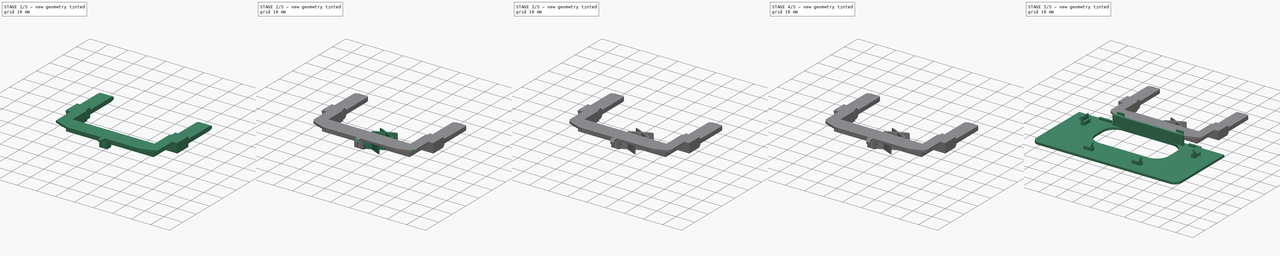
[diagram: build sequence overview — one tinted view per stage of 5, left to right]
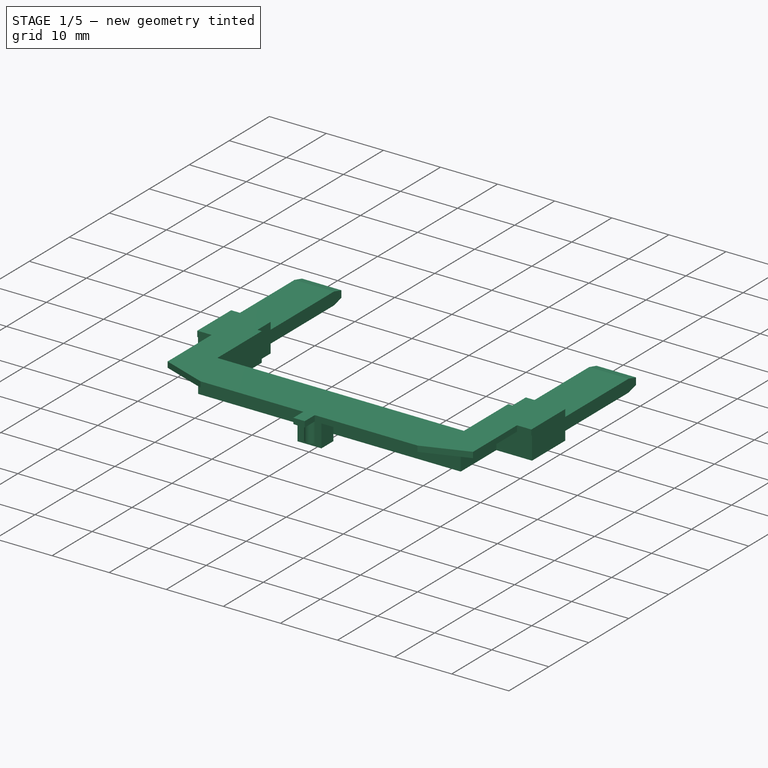
[diagram: stage 1 of 5 — iso view after this stage's code; geometry added in this stage tinted green]
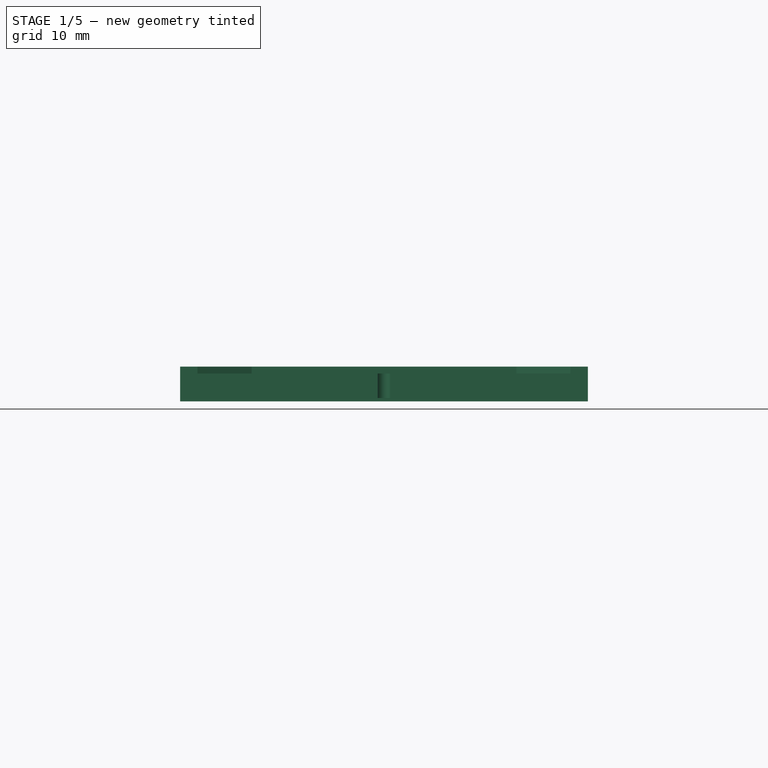
[diagram: stage 1 of 5 — front view after this stage's code; geometry added in this stage tinted green]
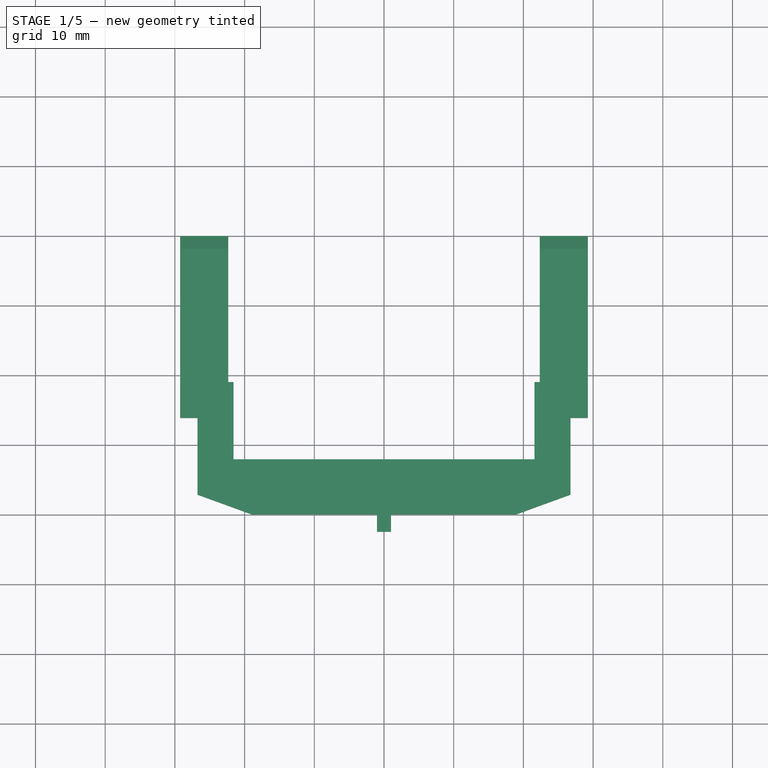
[diagram: stage 1 of 5 — top view after this stage's code; geometry added in this stage tinted green]
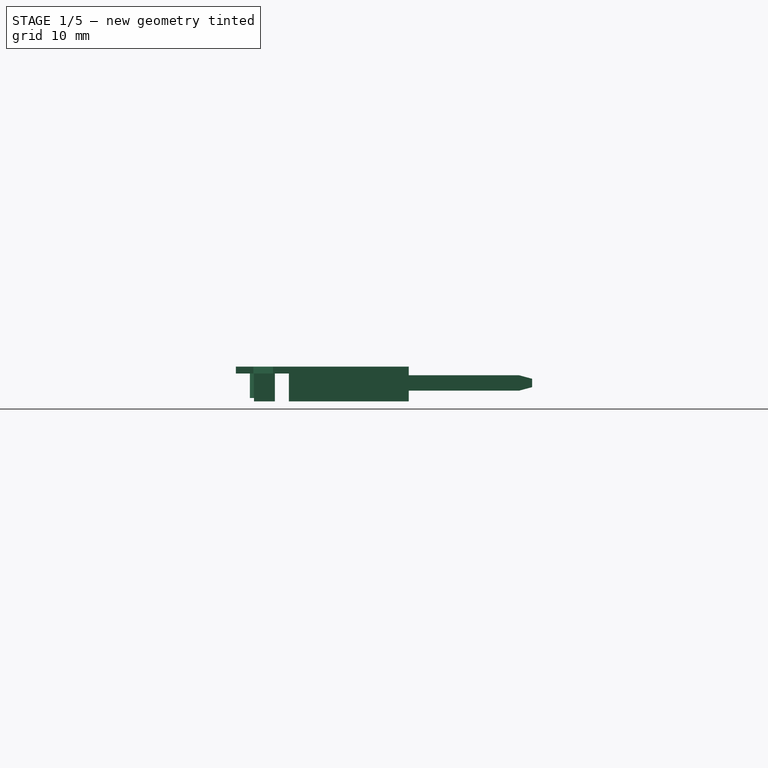
[diagram: stage 1 of 5 — right view after this stage's code; geometry added in this stage tinted green]
FCSTD DOCUMENT  (FreeCAD 0.20R29603 (Git))
Label: filter_hang
License: All rights reserved
LicenseURL: http://en.wikipedia.org/wiki/All_rights_reserved
objects: Sketcher::SketchObject×35, PartDesign::Pad×17, PartDesign::Pocket×17, PartDesign::Body×7, PartDesign::Fillet×3, PartDesign::Boolean×1, PartDesign::Chamfer×1, App::Part×1, Spreadsheet::Sheet×1
note: 119 computed .brp shape members not serialized (recipe doc carries the construction recipe); baked Part::Feature solids carry a one-line shape summary decoded from their .brp

FEATURE [Sketcher::SketchObject] Sketch
  FullyConstrained = true
  MapMode = 5
  Support = -> [XY_Plane001]
  sketch-geometry (4):
    g0: LineSegment StartX=-29.25 StartY=40 StartZ=0 EndX=29.25 EndY=40 EndZ=0
    g1: LineSegment StartX=29.25 StartY=40 StartZ=0 EndX=29.25 EndY=-2.5 EndZ=0
    g2: LineSegment StartX=29.25 StartY=-2.5 StartZ=0 EndX=-29.25 EndY=-2.5 EndZ=0
    g3: LineSegment StartX=-29.25 StartY=-2.5 StartZ=0 EndX=-29.25 EndY=40 EndZ=0
  constraints (12):
    c: Coincident(g0,g1)
    c: Coincident(g1,g2)
    c: Coincident(g2,g3)
    c: Coincident(g3,g0)
    c: Horizontal(g0)
    c: Horizontal(g2)
    c: Vertical(g1)
    c: Vertical(g3)
    c: DistanceY(g1,g0) = 42.5
    c: DistanceX(g2,g2) = 58.5
    c: DistanceY(g-1,g0) = 40
    c: DistanceX(g-1,g1) = 29.25
FEATURE [PartDesign::Pad] Pad  label="base002"
  Direction = (0,0,1)
  Length = 5
  Length2 = 100
  Profile = -> Sketch
  ReferenceAxis = -> Sketch [N_Axis]
  Type = 0
FEATURE [Sketcher::SketchObject] Sketch002
  ExternalGeometry = -> [Pad]
  FullyConstrained = true
  MapMode = 5
  Support = -> [XY_Plane001]
  sketch-geometry (4):
    g0: LineSegment StartX=-21.59 StartY=40 StartZ=0 EndX=21.59 EndY=40 EndZ=0
    g1: LineSegment StartX=21.59 StartY=40 StartZ=0 EndX=21.59 EndY=7.9 EndZ=0
    g2: LineSegment StartX=21.59 StartY=7.9 StartZ=0 EndX=-21.59 EndY=7.9 EndZ=0
    g3: LineSegment StartX=-21.59 StartY=7.9 StartZ=0 EndX=-21.59 EndY=40 EndZ=0
  constraints (12):
    c: Coincident(g0,g1)
    c: Coincident(g1,g2)
    c: Coincident(g2,g3)
    c: Coincident(g3,g0)
    c: Horizontal(g0)
    c: Horizontal(g2)
    c: Vertical(g1)
    c: Vertical(g3)
    c: DistanceY(g0,g-4) = 0
    c: DistanceX(g-4,g2) = 7.66
    c: DistanceX(g1,g-6) = 7.66
    c: DistanceY(g-1,g1) = 7.9
FEATURE [PartDesign::Pocket] Pocket  label="cut_big"
  BaseFeature = -> Pad
  Direction = (0,0,-1)
  Length = 5
  Length2 = 100
  Profile = -> Sketch002
  Reversed = true
  Type = 1
FEATURE [Sketcher::SketchObject] Sketch003
  ExternalGeometry = -> [Pocket]
  FullyConstrained = true
  MapMode = 5
  Support = -> [XY_Plane001]
  sketch-geometry (4):
    g0: LineSegment StartX=-22.35 StartY=19 StartZ=0 EndX=22.35 EndY=19 EndZ=0
    g1: LineSegment StartX=22.35 StartY=19 StartZ=0 EndX=22.35 EndY=40 EndZ=0
    g2: LineSegment StartX=22.35 StartY=40 StartZ=0 EndX=-22.35 EndY=40 EndZ=0
    g3: LineSegment StartX=-22.35 StartY=40 StartZ=0 EndX=-22.35 EndY=19 EndZ=0
  constraints (12):
    c: Coincident(g0,g1)
    c: Coincident(g1,g2)
    c: Coincident(g2,g3)
    c: Coincident(g3,g0)
    c: Horizontal(g0)
    c: Horizontal(g2)
    c: Vertical(g1)
    c: Vertical(g3)
    c: DistanceX(g0,g-3) = 0.76
    c: DistanceX(g-6,g1) = 0.76
    c: PointOnObject(g2,g-6)
    c: DistanceY(g3,g3) = 21
FEATURE [PartDesign::Pocket] Pocket001  label="inner_cut"
  BaseFeature = -> Pocket
  Direction = (0,0,-1)
  Length = 5
  Length2 = 100
  Profile = -> Sketch003
  ReferenceAxis = -> Sketch003 [N_Axis]
  Reversed = true
  Type = 1
FEATURE [Sketcher::SketchObject] Sketch005
  FullyConstrained = true
  MapMode = 5
  Placement = pos=(0,0,0) rot=(0.57735,0.57735,0.57735;2.0944rad)
  Support = -> [YZ_Plane001]
  sketch-geometry (10):
    g0: LineSegment StartX=22.3 StartY=7.55 StartZ=0 EndX=22.3 EndY=3.75 EndZ=0
    g1: LineSegment StartX=22.3 StartY=3.75 StartZ=0 EndX=38.15 EndY=3.75 EndZ=0
    g2: LineSegment StartX=38.15 StartY=3.75 StartZ=0 EndX=40 EndY=3.25014 EndZ=0
    g3: LineSegment StartX=40 StartY=3.25014 StartZ=0 EndX=40 EndY=2.05014 EndZ=0
    g4: LineSegment StartX=40 StartY=2.05014 StartZ=0 EndX=38.15 EndY=1.55 EndZ=0
    g5: LineSegment StartX=38.15 StartY=1.55 StartZ=0 EndX=22.3 EndY=1.55 EndZ=0
    g6: LineSegment StartX=22.3 StartY=1.55 StartZ=0 EndX=22.3 EndY=-2.25 EndZ=0
    g7: LineSegment StartX=22.3 StartY=-2.25 StartZ=0 EndX=45.66 EndY=-2.25 EndZ=0
    g8: LineSegment StartX=45.66 StartY=-2.25 StartZ=0 EndX=45.66 EndY=7.55 EndZ=0
    g9: LineSegment StartX=45.66 StartY=7.55 StartZ=0 EndX=22.3 EndY=7.55 EndZ=0
  constraints (30):
    c: Vertical(g0)
    c: Coincident(g0,g1)
    c: Horizontal(g1)
    c: Coincident(g1,g2)
    c: Coincident(g2,g3)
    c: Coincident(g3,g4)
    c: Coincident(g4,g5)
    c: Horizontal(g5)
    c: Coincident(g5,g6)
    c: Vertical(g6)
    c: Coincident(g6,g7)
    c: Horizontal(g7)
    c: Coincident(g7,g8)
    c: Vertical(g8)
    c: Coincident(g8,g9)
    c: Coincident(g9,g0)
    c: Horizontal(g9)
    c: DistanceY(g5,g0) = 2.2
    c: DistanceX(g1,g2) = 1.85
    c: DistanceX(g4,g3) = 1.85
    c: DistanceX(g9,g9) = 23.36
    c: DistanceX(g-1,g6) = 22.3
    c: DistanceY(g-1,g5) = 1.55
    c: DistanceX(g-1,g0) = 22.3
    c: Distance(g1) = 15.85
    c: Distance(g5) = 15.85
    c: Angle(g1,g2) = 2.8777
    c: Equal(g0,g6)
    c: DistanceY(g3,g3) = 1.2
    c: DistanceY(g8,g8) = 9.8
FEATURE [Sketcher::SketchObject] Sketch006
  FullyConstrained = true
  MapMode = 5
  Support = -> [XY_Plane001]
  sketch-geometry (8):
    g0: LineSegment StartX=-30 StartY=14 StartZ=0 EndX=-23 EndY=14 EndZ=0
    g1: LineSegment StartX=-23 StartY=14 StartZ=0 EndX=-23 EndY=5.1 EndZ=0
    g2: LineSegment StartX=-23 StartY=5.1 StartZ=0 EndX=23 EndY=5.1 EndZ=0
    g3: LineSegment StartX=23 StartY=5.1 StartZ=0 EndX=23 EndY=14 EndZ=0
    g4: LineSegment StartX=23 StartY=14 StartZ=0 EndX=30 EndY=14 EndZ=0
    g5: LineSegment StartX=30 StartY=14 StartZ=0 EndX=30 EndY=-2.5 EndZ=0
    g6: LineSegment StartX=-30 StartY=-2.5 StartZ=0 EndX=-30 EndY=14 EndZ=0
    g7: LineSegment StartX=-30 StartY=-2.5 StartZ=0 EndX=30 EndY=-2.5 EndZ=0
  constraints (24):
    c: Horizontal(g0)
    c: Coincident(g0,g1)
    c: Vertical(g1)
    c: Coincident(g1,g2)
    c: Horizontal(g2)
    c: Coincident(g2,g3)
    c: Vertical(g3)
    c: Coincident(g3,g4)
    c: Horizontal(g4)
    c: Coincident(g4,g5)
    c: Vertical(g5)
    c: Coincident(g6,g0)
    c: Vertical(g6)
    c: Horizontal(g7)
    c: Coincident(g7,g6)
    c: Coincident(g7,g5)
    c: DistanceX(g6,g-1) = 30
    c: DistanceX(g6,g5) = 60
    c: DistanceY(g5,g5) = 16.5
    c: DistanceY(g3,g3) = 8.9
    c: DistanceY(g6,g-1) = 2.5
    c: DistanceY(g6,g6) = 16.5
    c: Distance(g2) = 46
    c: Equal(g0,g4)
FEATURE [PartDesign::Pocket] Pocket004  label="outer_cut"
  BaseFeature = -> Pocket001
  Direction = (0,0,-1)
  Length = 4
  Length2 = 100
  Profile = -> Sketch006
  Reversed = true
  Type = 0
FEATURE [Sketcher::SketchObject] Sketch009
  FullyConstrained = true
  MapMode = 5
  Placement = pos=(0,0,4) rot=(1,0,0;3.14159rad)
  sketch-geometry (4):
    g0: LineSegment StartX=-2.1 StartY=-0.1 StartZ=0 EndX=2.1 EndY=-0.1 EndZ=0
    g1: LineSegment StartX=2.1 StartY=-0.1 StartZ=0 EndX=2.1 EndY=-3.1 EndZ=0
    g2: LineSegment StartX=2.1 StartY=-3.1 StartZ=0 EndX=-2.1 EndY=-3.1 EndZ=0
    g3: LineSegment StartX=-2.1 StartY=-3.1 StartZ=0 EndX=-2.1 EndY=-0.1 EndZ=0
  constraints (12):
    c: Coincident(g0,g1)
    c: Coincident(g1,g2)
    c: Coincident(g2,g3)
    c: Coincident(g3,g0)
    c: Horizontal(g0)
    c: Horizontal(g2)
    c: Vertical(g1)
    c: Vertical(g3)
    c: DistanceY(g3,g3) = 3
    c: Distance(g0) = 4.2
    c: DistanceX(g0,g-1) = 2.1
    c: DistanceY(g0,g-1) = 0.1
FEATURE [PartDesign::Pad] Pad002  label="pin1"
  BaseFeature = -> Pocket004
  Direction = (0,0,-1)
  Length = 4
  Length2 = 100
  Profile = -> Sketch009
  Type = 0
FEATURE [PartDesign::Body] Body001
  Group = -> [Sketch011,Pad003,Sketch012,Pocket007,Sketch013,Pad004,Sketch014,Pad005,Sketch015,Pocket008,Sketch016,Pad006,Sketch020,Pad008,Boolean]
  Origin = -> Origin002
  Tip = -> Boolean
FEATURE [PartDesign::Pocket] Pocket017  label="slots"
  BaseFeature = -> Pad002
  Direction = (-1,2e-16,-3e-16)
  Length = 5
  Length2 = 5
  Midplane = true
  Profile = -> Sketch005
  ReferenceAxis = -> Sketch005 [N_Axis]
  Type = 1
FEATURE [Sketcher::SketchObject] Sketch008  label="pin2"
  FullyConstrained = true
  MapMode = 5
  Placement = pos=(0,0,4) rot=(1,0,0;3.14159rad)
  Support = -> [Pocket017]
  sketch-geometry (1):
    g0: Circle CenterX=0 CenterY=-0.5 CenterZ=0 NormalX=0 NormalY=0 NormalZ=1 AngleXU=0 Radius=1
  constraints (3):
    c: Radius(g0) = 1
    c: DistanceY(g0,g-1) = 0.5
    c: PointOnObject(g0,g-2)
FEATURE [PartDesign::Pad] Pad016
  BaseFeature = -> Pocket017
  Direction = (0,0,-1)
  Length = 3.5
  Length2 = 10
  Profile = -> Sketch008
  ReferenceAxis = -> Sketch008 [N_Axis]
  Type = 0
FEATURE [Sketcher::SketchObject] Sketch034
  FullyConstrained = true
  MapMode = 5
  Support = -> [XY_Plane001]
  sketch-geometry (14):
    g0: LineSegment StartX=-19 StartY=0 StartZ=0 EndX=-1 EndY=0 EndZ=0
    g1: LineSegment StartX=-1 StartY=0 StartZ=0 EndX=-1 EndY=-3 EndZ=0
    g2: LineSegment StartX=-1 StartY=-3 StartZ=0 EndX=1 EndY=-3 EndZ=0
    g3: LineSegment StartX=1 StartY=-3 StartZ=0 EndX=1 EndY=0 EndZ=0
    g4: LineSegment StartX=1 StartY=0 StartZ=0 EndX=19 EndY=0 EndZ=0
    g5: LineSegment StartX=19 StartY=0 StartZ=0 EndX=26.75 EndY=2.82077 EndZ=0
    g6: LineSegment StartX=26.75 StartY=2.82077 StartZ=0 EndX=26.75 EndY=13.8208 EndZ=0
    g7: LineSegment StartX=26.75 StartY=13.8208 StartZ=0 EndX=30 EndY=13.8208 EndZ=0
    g8: LineSegment StartX=30 StartY=13.8208 StartZ=0 EndX=30 EndY=-4 EndZ=0
    g9: LineSegment StartX=30 StartY=-4 StartZ=0 EndX=-30 EndY=-4 EndZ=0
    g10: LineSegment StartX=-30 StartY=-4 StartZ=0 EndX=-30 EndY=13.8208 EndZ=0
    g11: LineSegment StartX=-30 StartY=13.8208 StartZ=0 EndX=-26.75 EndY=13.8208 EndZ=0
    g12: LineSegment StartX=-26.75 StartY=13.8208 StartZ=0 EndX=-26.75 EndY=2.82077 EndZ=0
    g13: LineSegment StartX=-26.75 StartY=2.82077 StartZ=0 EndX=-19 EndY=0 EndZ=0
  constraints (42):
    c: PointOnObject(g0,g-1)
    c: PointOnObject(g0,g-1)
    c: Coincident(g0,g1)
    c: Vertical(g1)
    c: Coincident(g1,g2)
    c: Horizontal(g2)
    c: Coincident(g2,g3)
    c: PointOnObject(g3,g-1)
    c: Vertical(g3)
    c: Coincident(g3,g4)
    c: PointOnObject(g4,g-1)
    c: Coincident(g4,g5)
    c: Coincident(g5,g6)
    c: Vertical(g6)
    c: Coincident(g6,g7)
    c: Horizontal(g7)
    c: Coincident(g7,g8)
    c: Vertical(g8)
    c: Coincident(g8,g9)
    c: Horizontal(g9)
    c: Coincident(g9,g10)
    c: Vertical(g10)
    c: Coincident(g10,g11)
    c: Horizontal(g11)
    c: Coincident(g11,g12)
    c: Vertical(g12)
    c: Coincident(g12,g13)
    c: Coincident(g13,g0)
    c: Distance(g9) = 60
    c: DistanceX(g9,g-1) = 30
    c: DistanceX(g2,g2) = 2
    c: DistanceX(g1,g-1) = 1
    c: DistanceY(g1,g1) = 3
    c: DistanceX(g4,g4) = 18
    c: DistanceX(g0,g0) = 18
    c: Angle(g5,g4) = 2.79253
    c: Angle(g0,g13) = 2.79253
    c: DistanceY(g6,g6) = 11
    c: DistanceY(g12,g12) = 11
    c: DistanceY(g8,g-1) = 4
    c: DistanceX(g11,g6) = 53.5
    c: Equal(g13,g5)
FEATURE [PartDesign::Pocket] Pocket018
  BaseFeature = -> Pad016
  Direction = (0,0,-1)
  Length = 5
  Length2 = 5
  Profile = -> Sketch034
  ReferenceAxis = -> Sketch034 [N_Axis]
  Reversed = true
  Type = 1
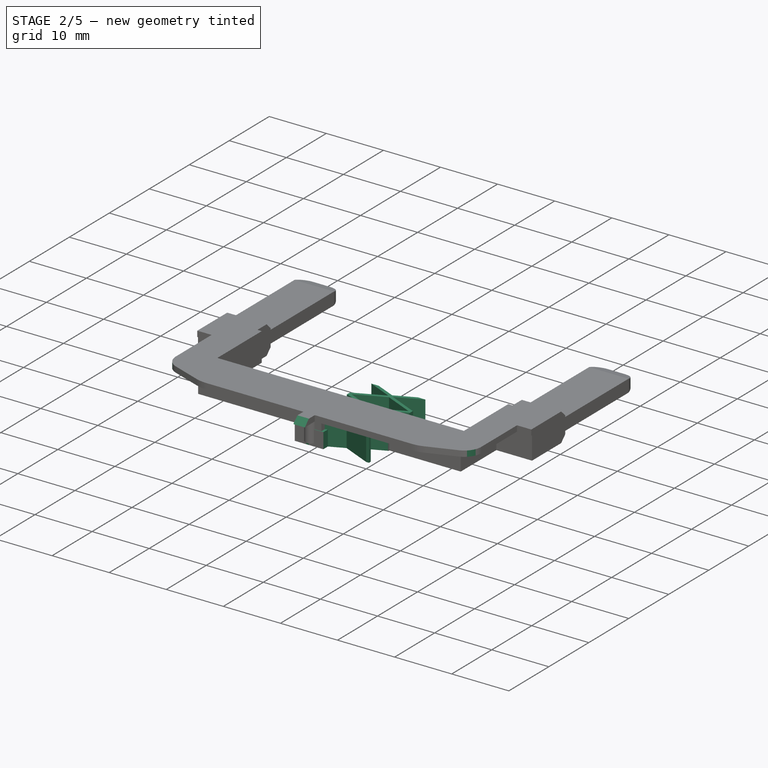
[diagram: stage 2 of 5 — iso view after this stage's code; geometry added in this stage tinted green]
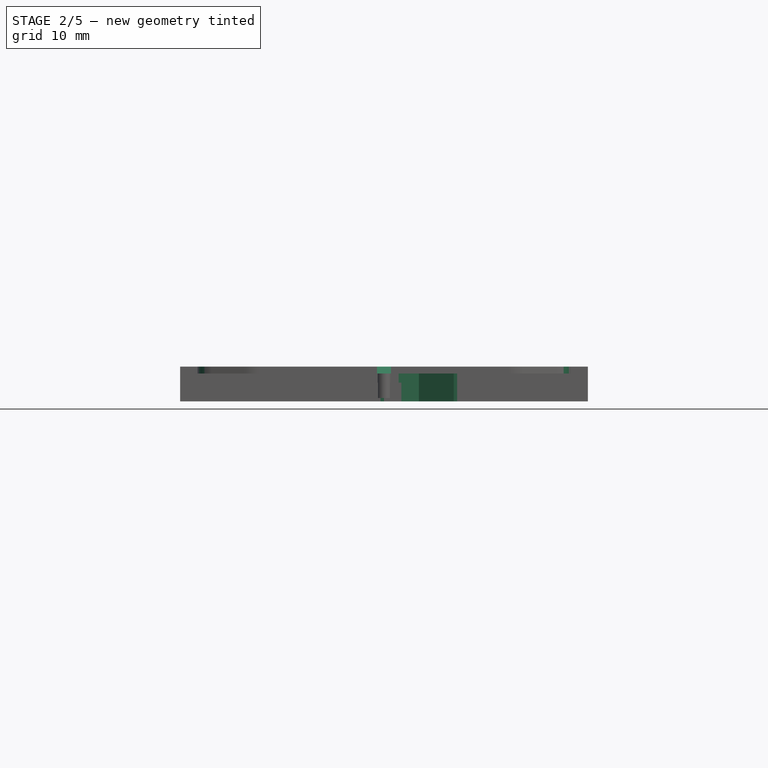
[diagram: stage 2 of 5 — front view after this stage's code; geometry added in this stage tinted green]
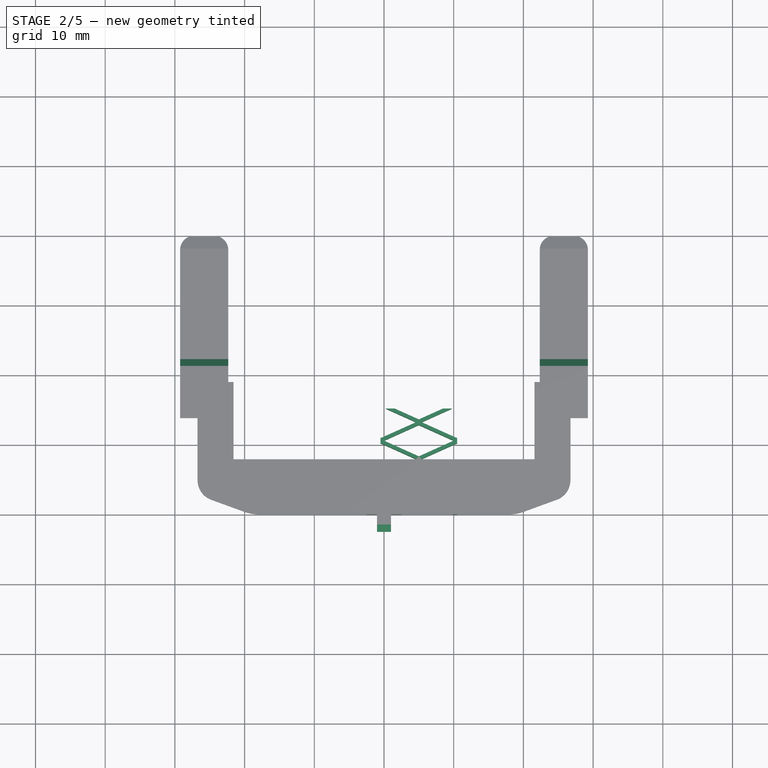
[diagram: stage 2 of 5 — top view after this stage's code; geometry added in this stage tinted green]
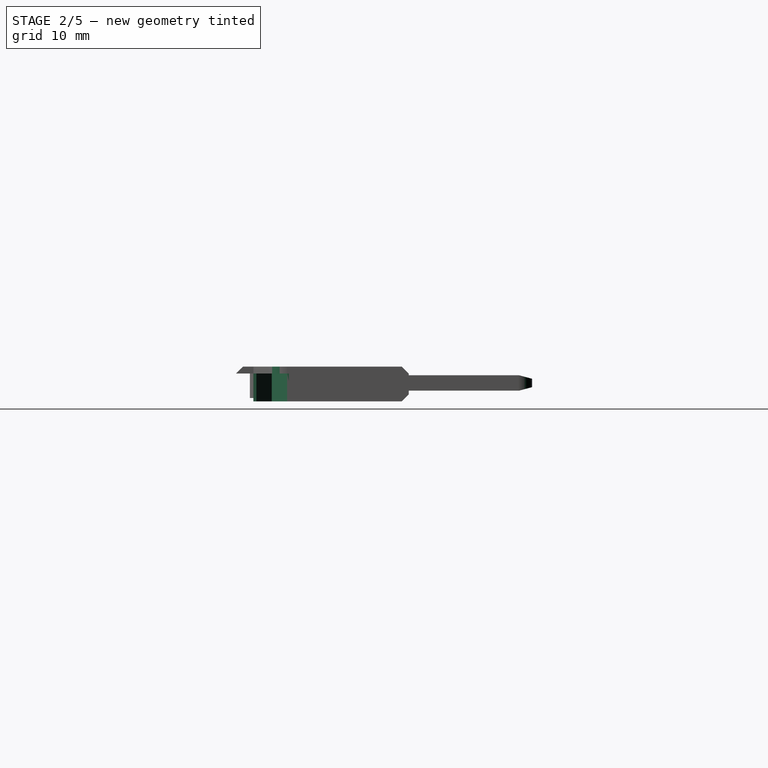
[diagram: stage 2 of 5 — right view after this stage's code; geometry added in this stage tinted green]
FEATURE [Sketcher::SketchObject] Sketch027
  FullyConstrained = true
  MapMode = 5
  Support = -> [XY_Plane006]
  sketch-geometry (4):
    g0: LineSegment StartX=-2.5 StartY=4.5 StartZ=0 EndX=2.5 EndY=4.5 EndZ=0
    g1: LineSegment StartX=2.5 StartY=4.5 StartZ=0 EndX=2.5 EndY=0 EndZ=0
    g2: LineSegment StartX=2.5 StartY=0 StartZ=0 EndX=-2.5 EndY=0 EndZ=0
    g3: LineSegment StartX=-2.5 StartY=0 StartZ=0 EndX=-2.5 EndY=4.5 EndZ=0
  constraints (12):
    c: Coincident(g0,g1)
    c: Coincident(g1,g2)
    c: Coincident(g2,g3)
    c: Coincident(g3,g0)
    c: Horizontal(g0)
    c: Horizontal(g2)
    c: Vertical(g1)
    c: Vertical(g3)
    c: DistanceY(g3,g3) = 4.5
    c: DistanceX(g0,g0) = 5
    c: DistanceY(g1,g-1) = 0
    c: DistanceX(g-1,g1) = 2.5
FEATURE [PartDesign::Pad] Pad011
  Direction = (0,0,1)
  Length = 2.7
  Length2 = 10
  Profile = -> Sketch027
  ReferenceAxis = -> Sketch027 [N_Axis]
  Type = 0
FEATURE [PartDesign::Fillet] Fillet
  Base = -> Pocket018 [Edge107,Edge96,Edge2,Edge4]
  BaseFeature = -> Pocket018
  Radius = 2
  SupportTransform = false
  UseAllEdges = false
FEATURE [PartDesign::Fillet] Fillet001
  Base = -> Fillet [Edge113,Edge120]
  BaseFeature = -> Fillet
  Radius = 3
  SupportTransform = false
  UseAllEdges = false
FEATURE [PartDesign::Fillet] Fillet002
  Base = -> Fillet001 [Edge63,Edge33]
  BaseFeature = -> Fillet001
  Radius = 6
  SupportTransform = false
  UseAllEdges = false
FEATURE [Sketcher::SketchObject] Sketch035
  FullyConstrained = true
  MapMode = 5
  Support = -> [XY_Plane007]
  sketch-geometry (4):
    g0: LineSegment StartX=-0.5 StartY=0 StartZ=0 EndX=10.5 EndY=0 EndZ=0
    g1: LineSegment StartX=10.5 StartY=0 StartZ=0 EndX=10.5 EndY=15.2 EndZ=0
    g2: LineSegment StartX=10.5 StartY=15.2 StartZ=0 EndX=-0.5 EndY=15.2 EndZ=0
    g3: LineSegment StartX=-0.5 StartY=15.2 StartZ=0 EndX=-0.5 EndY=0 EndZ=0
  constraints (12):
    c: Coincident(g0,g1)
    c: Coincident(g1,g2)
    c: Coincident(g2,g3)
    c: Coincident(g3,g0)
    c: Horizontal(g0)
    c: Horizontal(g2)
    c: Vertical(g1)
    c: Vertical(g3)
    c: DistanceY(g3,g3) = 15.2
    c: DistanceX(g0,g0) = 11
    c: PointOnObject(g0,g-1)
    c: DistanceX(g0,g-1) = 0.5
FEATURE [PartDesign::Pad] Pad017
  Direction = (0,0,1)
  Length = 4
  Length2 = 10
  Profile = -> Sketch035
  ReferenceAxis = -> Sketch035 [N_Axis]
  Type = 0
FEATURE [Sketcher::SketchObject] Sketch036
  FullyConstrained = true
  MapMode = 5
  Placement = pos=(0,0,4) rot=(0,0,1;0rad)
  Support = -> [Pad017]
  sketch-geometry (52):
    g0: LineSegment StartX=0 StartY=0 StartZ=0 EndX=5 EndY=1.5 EndZ=0
    g1: LineSegment StartX=5 StartY=1.5 StartZ=0 EndX=10 EndY=-4e-16 EndZ=0
    g2: LineSegment StartX=10 StartY=-4e-16 StartZ=0 EndX=5 EndY=-1.5 EndZ=0
    g3: LineSegment StartX=5 StartY=-1.5 StartZ=0 EndX=0 EndY=0 EndZ=0
    g4: LineSegment StartX=0 StartY=3.3 StartZ=0 EndX=5 EndY=4.8 EndZ=0
    g5: LineSegment StartX=5 StartY=4.8 StartZ=0 EndX=10 EndY=3.3 EndZ=0
    g6: LineSegment StartX=10 StartY=3.3 StartZ=0 EndX=5 EndY=1.8 EndZ=0
    g7: LineSegment StartX=5 StartY=1.8 StartZ=0 EndX=0 EndY=3.3 EndZ=0
    g8: LineSegment StartX=0 StartY=6.6 StartZ=0 EndX=5 EndY=8.1 EndZ=0
    g9: LineSegment StartX=5 StartY=8.1 StartZ=0 EndX=10 EndY=6.6 EndZ=0
    g10: LineSegment StartX=10 StartY=6.6 StartZ=0 EndX=5 EndY=5.1 EndZ=0
    g11: LineSegment StartX=5 StartY=5.1 StartZ=0 EndX=0 EndY=6.6 EndZ=0
    g12: LineSegment StartX=0 StartY=9.9 StartZ=0 EndX=5 EndY=11.4 EndZ=0
    g13: LineSegment StartX=5 StartY=11.4 StartZ=0 EndX=10 EndY=9.9 EndZ=0
    g14: LineSegment StartX=10 StartY=9.9 StartZ=0 EndX=5 EndY=8.4 EndZ=0
    g15: LineSegment StartX=5 StartY=8.4 StartZ=0 EndX=0 EndY=9.9 EndZ=0
    g16: LineSegment StartX=0 StartY=13.2 StartZ=0 EndX=5 EndY=14.7 EndZ=0
    g17: LineSegment StartX=5 StartY=14.7 StartZ=0 EndX=10 EndY=13.2 EndZ=0
    g18: LineSegment StartX=10 StartY=13.2 StartZ=0 EndX=5 EndY=11.7 EndZ=0
    g19: LineSegment StartX=5 StartY=11.7 StartZ=0 EndX=0 EndY=13.2 EndZ=0
    g20: LineSegment StartX=-5.15 StartY=11.55 StartZ=0 EndX=-0.15 EndY=13.05 EndZ=0
    g21: LineSegment StartX=-0.15 StartY=13.05 StartZ=0 EndX=4.85 EndY=11.55 EndZ=0
    g22: LineSegment StartX=4.85 StartY=11.55 StartZ=0 EndX=-0.15 EndY=10.05 EndZ=0
    g23: LineSegment StartX=-0.15 StartY=10.05 StartZ=0 EndX=-5.15 EndY=11.55 EndZ=0
    g24: LineSegment StartX=-5.15 StartY=8.25 StartZ=0 EndX=-0.15 EndY=9.75 EndZ=0
    g25: LineSegment StartX=-0.15 StartY=9.75 StartZ=0 EndX=4.85 EndY=8.25 EndZ=0
    g26: LineSegment StartX=4.85 StartY=8.25 StartZ=0 EndX=-0.15 EndY=6.75 EndZ=0
    g27: LineSegment StartX=-0.15 StartY=6.75 StartZ=0 EndX=-5.15 EndY=8.25 EndZ=0
    g28: LineSegment StartX=-5.15 StartY=4.95 StartZ=0 EndX=-0.15 EndY=6.45 EndZ=0
    g29: LineSegment StartX=-0.15 StartY=6.45 StartZ=0 EndX=4.85 EndY=4.95 EndZ=0
    g30: LineSegment StartX=4.85 StartY=4.95 StartZ=0 EndX=-0.15 EndY=3.45 EndZ=0
    g31: LineSegment StartX=-0.15 StartY=3.45 StartZ=0 EndX=-5.15 EndY=4.95 EndZ=0
    g32: LineSegment StartX=-5.15 StartY=1.65 StartZ=0 EndX=-0.15 EndY=3.15 EndZ=0
    g33: LineSegment StartX=-0.15 StartY=3.15 StartZ=0 EndX=4.85 EndY=1.65 EndZ=0
    g34: LineSegment StartX=4.85 StartY=1.65 StartZ=0 EndX=-0.15 EndY=0.15 EndZ=0
    g35: LineSegment StartX=-0.15 StartY=0.15 StartZ=0 EndX=-5.15 EndY=1.65 EndZ=0
    g36: LineSegment StartX=5.15 StartY=11.55 StartZ=0 EndX=10.15 EndY=13.05 EndZ=0
    g37: LineSegment StartX=10.15 StartY=13.05 StartZ=0 EndX=15.15 EndY=11.55 EndZ=0
    g38: LineSegment StartX=15.15 StartY=11.55 StartZ=0 EndX=10.15 EndY=10.05 EndZ=0
    g39: LineSegment StartX=10.15 StartY=10.05 StartZ=0 EndX=5.15 EndY=11.55 EndZ=0
    g40: LineSegment StartX=5.15 StartY=8.25 StartZ=0 EndX=10.15 EndY=9.75 EndZ=0
    g41: LineSegment StartX=10.15 StartY=9.75 StartZ=0 EndX=15.15 EndY=8.25 EndZ=0
    g42: LineSegment StartX=15.15 StartY=8.25 StartZ=0 EndX=10.15 EndY=6.75 EndZ=0
    g43: LineSegment StartX=10.15 StartY=6.75 StartZ=0 EndX=5.15 EndY=8.25 EndZ=0
    g44: LineSegment StartX=5.15 StartY=4.95 StartZ=0 EndX=10.15 EndY=6.45 EndZ=0
    g45: LineSegment StartX=10.15 StartY=6.45 StartZ=0 EndX=15.15 EndY=4.95 EndZ=0
    g46: LineSegment StartX=15.15 StartY=4.95 StartZ=0 EndX=10.15 EndY=3.45 EndZ=0
    g47: LineSegment StartX=10.15 StartY=3.45 StartZ=0 EndX=5.15 EndY=4.95 EndZ=0
    g48: LineSegment StartX=5.15 StartY=1.65 StartZ=0 EndX=10.15 EndY=3.15 EndZ=0
    g49: LineSegment StartX=10.15 StartY=3.15 StartZ=0 EndX=15.15 EndY=1.65 EndZ=0
    g50: LineSegment StartX=15.15 StartY=1.65 StartZ=0 EndX=10.15 EndY=0.15 EndZ=0
    g51: LineSegment StartX=10.15 StartY=0.15 StartZ=0 EndX=5.15 EndY=1.65 EndZ=0
  constraints (155):
    c: Coincident(g0,g1)
    c: Coincident(g1,g2)
    c: Coincident(g2,g3)
    c: Coincident(g3,g0)
    c: DistanceX(g-1,g0) = 5
    c: DistanceX(g-1,g2) = 5
    c: DistanceY(g2,g0) = 3
    c: DistanceX(g0,g1) = 10
    c: Coincident(g0,g-1)
    c: PointOnObject(g1,g-1)
    c: DistanceY(g0,g0) = 1.5
    c: Coincident(g4,g5)
    c: Coincident(g5,g6)
    c: Coincident(g6,g7)
    c: Coincident(g7,g4)
    c: DistanceY(g6,g4) = 3
    c: DistanceX(g4,g5) = 10
    c: Equal(g0,g4) = 1.5
    c: DistanceY(g0,g4) = 3.3
    c: PointOnObject(g4,g-2)
    c: DistanceY(g0,g5) = 3.3
    c: DistanceY(g0,g6) = 0.3
    c: DistanceX(g0,g6) = 5
    c: Coincident(g8,g9)
    c: Coincident(g9,g10)
    c: Coincident(g10,g11)
    c: Coincident(g11,g8)
    c: DistanceY(g10,g8) = 3
    c: DistanceX(g8,g9) = 10
    c: Equal(g0,g8) = 1.5
    c: Coincident(g12,g13)
    c: Coincident(g13,g14)
    c: Coincident(g14,g15)
    c: Coincident(g15,g12)
    c: DistanceY(g14,g12) = 3
    c: DistanceX(g12,g13) = 10
    c: Equal(g8,g12) = 1.5
    c: DistanceY(g8,g12) = 3.3
    c: DistanceY(g8,g13) = 3.3
    c: DistanceY(g8,g14) = 0.3
    c: DistanceX(g8,g14) = 5
    c: DistanceY(g4,g8) = 3.3
    c: DistanceY(g5,g9) = 3.3
    c: DistanceY(g4,g10) = 0.3
    c: DistanceX(g0,g10) = 5
    c: PointOnObject(g12,g-2)
    c: PointOnObject(g8,g-2)
    c: Coincident(g16,g17)
    c: Coincident(g17,g18)
    c: Coincident(g18,g19)
    c: Coincident(g19,g16)
    c: DistanceY(g18,g16) = 3
    c: DistanceX(g16,g17) = 10
    c: DistanceY(g12,g18) = 0.3
    c: DistanceY(g13,g17) = 3.3
    c: DistanceY(g12,g16) = 3.3
    c: DistanceX(g16,g18) = 5
    c: PointOnObject(g16,g-2)
    c: DistanceX(g16,g16) = 5
    c: Coincident(g20,g21)
    c: Coincident(g21,g22)
    c: Coincident(g22,g23)
    c: Coincident(g23,g20)
    c: DistanceY(g22,g20) = 3
    c: DistanceX(g20,g21) = 10
    c: DistanceX(g22,g21) = 5
    c: DistanceX(g20,g20) = 5
    c: DistanceY(g21,g20) = 1.5
    c: DistanceY(g22,g20) = 1.5
    c: Coincident(g24,g25)
    c: Coincident(g25,g26)
    c: Coincident(g26,g27)
    c: Coincident(g27,g24)
    c: DistanceY(g26,g24) = 3
    c: DistanceX(g24,g25) = 10
    c: DistanceX(g26,g25) = 5
    c: Equal(g20,g24) = 5
    c: DistanceY(g25,g24) = 1.5
    c: DistanceY(g26,g24) = 1.5
    c: DistanceY(g24,g22) = 0.3
    c: DistanceX(g24,g21) = 10
    c: Coincident(g28,g29)
    c: Coincident(g29,g30)
    c: Coincident(g30,g31)
    c: Coincident(g31,g28)
    c: DistanceY(g30,g28) = 3
    c: DistanceX(g28,g29) = 10
    c: DistanceX(g30,g29) = 5
    c: Equal(g20,g28) = 5
    c: DistanceY(g29,g28) = 1.5
    c: DistanceY(g30,g28) = 1.5
    c: Coincident(g32,g33)
    c: Coincident(g33,g34)
    c: Coincident(g34,g35)
    c: Coincident(g35,g32)
    c: DistanceY(g34,g32) = 3
    c: DistanceX(g32,g33) = 10
    c: DistanceX(g34,g33) = 5
    c: Equal(g28,g32) = 5
    c: DistanceY(g33,g32) = 1.5
    c: DistanceY(g34,g32) = 1.5
    c: DistanceY(g32,g30) = 0.3
    c: DistanceX(g32,g29) = 10
    c: DistanceY(g28,g26) = 0.3
    c: DistanceX(g28,g25) = 10
    c: Coincident(g36,g37)
    c: Coincident(g37,g38)
    c: Coincident(g38,g39)
    c: Coincident(g39,g36)
    c: DistanceY(g38,g36) = 3
    c: DistanceX(g36,g37) = 10
    c: DistanceX(g38,g37) = 5
    c: Equal(g20,g36) = 5
    c: DistanceY(g37,g36) = 1.5
    c: DistanceY(g38,g36) = 1.5
    c: Coincident(g40,g41)
    c: Coincident(g41,g42)
    c: Coincident(g42,g43)
    c: Coincident(g43,g40)
    c: DistanceY(g42,g40) = 3
    c: DistanceX(g40,g41) = 10
    c: DistanceX(g42,g41) = 5
    c: Equal(g36,g40) = 5
    c: DistanceY(g41,g40) = 1.5
    c: DistanceY(g42,g40) = 1.5
    c: DistanceY(g40,g38) = 0.3
    c: DistanceX(g40,g37) = 10
    c: Coincident(g44,g45)
    c: Coincident(g45,g46)
    c: Coincident(g46,g47)
    c: Coincident(g47,g44)
    c: DistanceY(g46,g44) = 3
    c: DistanceX(g44,g45) = 10
    c: DistanceX(g46,g45) = 5
    c: Equal(g36,g44) = 5
    c: DistanceY(g45,g44) = 1.5
    c: DistanceY(g46,g44) = 1.5
    c: Coincident(g48,g49)
    c: Coincident(g49,g50)
    c: Coincident(g50,g51)
    c: Coincident(g51,g48)
    c: DistanceY(g50,g48) = 3
    c: DistanceX(g48,g49) = 10
    c: DistanceX(g50,g49) = 5
    c: Equal(g44,g48) = 5
    c: DistanceY(g49,g48) = 1.5
    c: DistanceY(g50,g48) = 1.5
    c: DistanceY(g48,g46) = 0.3
    c: DistanceX(g48,g45) = 10
    c: DistanceY(g44,g42) = 0.3
    c: DistanceX(g44,g41) = 10
    c: DistanceY(g0,g50) = 0.15
    c: DistanceX(g1,g50) = 0.15
    c: DistanceY(g0,g34) = 0.15
    c: DistanceX(g34,g0) = 0.15
FEATURE [Sketcher::SketchObject] Sketch037
  FullyConstrained = true
  MapMode = 5
  Placement = pos=(0,0,4) rot=(0,0,1;0rad)
  Support = -> [Pad017]
  expr: Constraints[105] = Spreadsheet.spring_height
  expr: Constraints[106] = Spreadsheet.spring_midle_y
  expr: Constraints[111] = Spreadsheet.spring_midle_y
  expr: Constraints[112] = Spreadsheet.spring_midle_y
  expr: Constraints[118] = Spreadsheet.spring_height
  expr: Constraints[119] = Spreadsheet.spring_midle_y
  expr: Constraints[127] = Spreadsheet.spring_height
  expr: Constraints[128] = Spreadsheet.spring_midle_y
  expr: Constraints[133] = Spreadsheet.spring_midle_y
  expr: Constraints[134] = Spreadsheet.spring_midle_y
  expr: Constraints[139] = Spreadsheet.spring_face_width_half
  expr: Constraints[13] = Spreadsheet.spring_height
  expr: Constraints[140] = Spreadsheet.spring_face_width_half
  expr: Constraints[141] = Spreadsheet.spring_face_width_half
  expr: Constraints[142] = Spreadsheet.spring_face_width_half
  expr: Constraints[14] = Spreadsheet.spring_midle_y
  expr: Constraints[18] = Spreadsheet.spring_face_width
  expr: Constraints[19] = Spreadsheet.spring_midle_y
  expr: Constraints[20] = Spreadsheet.spring_midle_y
  expr: Constraints[26] = Spreadsheet.spring_height
  expr: Constraints[27] = Spreadsheet.spring_midle_y
  expr: Constraints[35] = Spreadsheet.spring_height
  expr: Constraints[36] = Spreadsheet.spring_midle_y
  expr: Constraints[41] = Spreadsheet.spring_midle_y
  expr: Constraints[42] = Spreadsheet.spring_midle_y
  expr: Constraints[44] = Spreadsheet.spring_face_width
  expr: Constraints[45] = Spreadsheet.spring_width
  expr: Constraints[4] = Spreadsheet.spring_height
  expr: Constraints[50] = Spreadsheet.spring_height
  expr: Constraints[51] = Spreadsheet.spring_midle_y
  expr: Constraints[59] = Spreadsheet.spring_height
  expr: Constraints[5] = Spreadsheet.spring_midle_y
  expr: Constraints[60] = Spreadsheet.spring_midle_y
  expr: Constraints[65] = Spreadsheet.spring_midle_y
  expr: Constraints[66] = Spreadsheet.spring_midle_y
  expr: Constraints[6] = Spreadsheet.spring_width
  expr: Constraints[72] = Spreadsheet.spring_height
  expr: Constraints[73] = Spreadsheet.spring_midle_y
  expr: Constraints[7] = Spreadsheet.spring_midle_x
  expr: Constraints[81] = Spreadsheet.spring_height
  expr: Constraints[82] = Spreadsheet.spring_midle_y
  expr: Constraints[87] = Spreadsheet.spring_midle_y
  expr: Constraints[88] = Spreadsheet.spring_midle_y
  expr: Constraints[8] = Spreadsheet.spring_midle_x
  expr: Constraints[96] = Spreadsheet.spring_height
  expr: Constraints[97] = Spreadsheet.spring_midle_y
  sketch-geometry (48):
    g0: LineSegment StartX=0 StartY=0 StartZ=0 EndX=5 EndY=2.25 EndZ=0
    g1: LineSegment StartX=5 StartY=2.25 StartZ=0 EndX=10 EndY=0 EndZ=0
    g2: LineSegment StartX=10 StartY=1e-16 StartZ=0 EndX=5 EndY=-2.25 EndZ=0
    g3: LineSegment StartX=5 StartY=-2.25 StartZ=0 EndX=0 EndY=0 EndZ=0
    g4: LineSegment StartX=0 StartY=5.3 StartZ=0 EndX=5 EndY=7.55 EndZ=0
    g5: LineSegment StartX=5 StartY=7.55 StartZ=0 EndX=10 EndY=5.3 EndZ=0
    g6: LineSegment StartX=10 StartY=5.3 StartZ=0 EndX=5 EndY=3.05 EndZ=0
    g7: LineSegment StartX=5 StartY=3.05 StartZ=0 EndX=0 EndY=5.3 EndZ=0
    g8: LineSegment StartX=-6e-16 StartY=10.6 StartZ=0 EndX=5 EndY=12.85 EndZ=0
    g9: LineSegment StartX=5 StartY=12.85 StartZ=0 EndX=10 EndY=10.6 EndZ=0
    g10: LineSegment StartX=10 StartY=10.6 StartZ=0 EndX=5 EndY=8.35 EndZ=0
    g11: LineSegment StartX=5 StartY=8.35 StartZ=0 EndX=-9e-16 EndY=10.6 EndZ=0
    g12: LineSegment StartX=-6e-16 StartY=15.9 StartZ=0 EndX=5 EndY=18.15 EndZ=0
    g13: LineSegment StartX=5 StartY=18.15 StartZ=0 EndX=10 EndY=15.9 EndZ=0
    g14: LineSegment StartX=10 StartY=15.9 StartZ=0 EndX=5 EndY=13.65 EndZ=0
    g15: LineSegment StartX=5 StartY=13.65 StartZ=0 EndX=-9e-16 EndY=15.9 EndZ=0
    g16: LineSegment StartX=5.4 StartY=2.65 StartZ=0 EndX=10.4 EndY=4.9 EndZ=0
    g17: LineSegment StartX=10.4 StartY=4.9 StartZ=0 EndX=15.4 EndY=2.65 EndZ=0
    g18: LineSegment StartX=15.4 StartY=2.65 StartZ=0 EndX=10.4 EndY=0.4 EndZ=0
    g19: LineSegment StartX=10.4 StartY=0.4 StartZ=0 EndX=5.4 EndY=2.65 EndZ=0
    g20: LineSegment StartX=5.4 StartY=7.95 StartZ=0 EndX=10.4 EndY=10.2 EndZ=0
    g21: LineSegment StartX=10.4 StartY=10.2 StartZ=0 EndX=15.4 EndY=7.95 EndZ=0
    g22: LineSegment StartX=15.4 StartY=7.95 StartZ=0 EndX=10.4 EndY=5.7 EndZ=0
    g23: LineSegment StartX=10.4 StartY=5.7 StartZ=0 EndX=5.4 EndY=7.95 EndZ=0
    g24: LineSegment StartX=5.4 StartY=13.25 StartZ=0 EndX=10.4 EndY=15.5 EndZ=0
    g25: LineSegment StartX=10.4 StartY=15.5 StartZ=0 EndX=15.4 EndY=13.25 EndZ=0
    g26: LineSegment StartX=15.4 StartY=13.25 StartZ=0 EndX=10.4 EndY=11 EndZ=0
    g27: LineSegment StartX=10.4 StartY=11 StartZ=0 EndX=5.4 EndY=13.25 EndZ=0
    g28: LineSegment StartX=5.4 StartY=18.55 StartZ=0 EndX=10.4 EndY=20.8 EndZ=0
    g29: LineSegment StartX=10.4 StartY=20.8 StartZ=0 EndX=15.4 EndY=18.55 EndZ=0
    g30: LineSegment StartX=15.4 StartY=18.55 StartZ=0 EndX=10.4 EndY=16.3 EndZ=0
    g31: LineSegment StartX=10.4 StartY=16.3 StartZ=0 EndX=5.4 EndY=18.55 EndZ=0
    g32: LineSegment StartX=-5.4 StartY=2.65 StartZ=0 EndX=-0.4 EndY=4.9 EndZ=0
    g33: LineSegment StartX=-0.4 StartY=4.9 StartZ=0 EndX=4.6 EndY=2.65 EndZ=0
    g34: LineSegment StartX=4.6 StartY=2.65 StartZ=0 EndX=-0.4 EndY=0.4 EndZ=0
    g35: LineSegment StartX=-0.4 StartY=0.4 StartZ=0 EndX=-5.4 EndY=2.65 EndZ=0
    g36: LineSegment StartX=-5.4 StartY=7.95 StartZ=0 EndX=-0.4 EndY=10.2 EndZ=0
    g37: LineSegment StartX=-0.4 StartY=10.2 StartZ=0 EndX=4.6 EndY=7.95 EndZ=0
    g38: LineSegment StartX=4.6 StartY=7.95 StartZ=0 EndX=-0.4 EndY=5.7 EndZ=0
    g39: LineSegment StartX=-0.4 StartY=5.7 StartZ=0 EndX=-5.4 EndY=7.95 EndZ=0
    g40: LineSegment StartX=-5.4 StartY=13.25 StartZ=0 EndX=-0.4 EndY=15.5 EndZ=0
    g41: LineSegment StartX=-0.4 StartY=15.5 StartZ=0 EndX=4.6 EndY=13.25 EndZ=0
    g42: LineSegment StartX=4.6 StartY=13.25 StartZ=0 EndX=-0.4 EndY=11 EndZ=0
    g43: LineSegment StartX=-0.4 StartY=11 StartZ=0 EndX=-5.4 EndY=13.25 EndZ=0
    g44: LineSegment StartX=-5.4 StartY=18.55 StartZ=0 EndX=-0.4 EndY=20.8 EndZ=0
    g45: LineSegment StartX=-0.4 StartY=20.8 StartZ=0 EndX=4.6 EndY=18.55 EndZ=0
    g46: LineSegment StartX=4.6 StartY=18.55 StartZ=0 EndX=-0.4 EndY=16.3 EndZ=0
    g47: LineSegment StartX=-0.4 StartY=16.3 StartZ=0 EndX=-5.4 EndY=18.55 EndZ=0
  constraints (143):
    c: Coincident(g0,g1)
    c: Coincident(g1,g2)
    c: Coincident(g2,g3)
    c: Coincident(g3,g0)
    c: DistanceY(g2,g0) = 4.5
    c: DistanceY(g2,g0) = 2.25
    c: DistanceX(g0,g1) = 10
    c: DistanceX(g0,g2) = 5
    c: DistanceX(g0,g0) = 5
    c: Coincident(g4,g5)
    c: Coincident(g5,g6)
    c: Coincident(g6,g7)
    c: Coincident(g7,g4)
    c: DistanceY(g6,g4) = 4.5
    c: DistanceY(g6,g4) = 2.25
    c: DistanceX(g4,g5) = 10
    c: DistanceX(g4,g6) = 5
    c: Equal(g0,g4) = 5
    c: DistanceY(g0,g6) = 0.8
    c: DistanceY(g1,g0) = 2.25
    c: DistanceY(g5,g4) = 2.25
    c: DistanceX(g0,g4) = 0
    c: Coincident(g8,g9)
    c: Coincident(g9,g10)
    c: Coincident(g10,g11)
    c: Coincident(g11,g8)
    c: DistanceY(g10,g8) = 4.5
    c: DistanceY(g10,g8) = 2.25
    c: DistanceX(g8,g9) = 10
    c: DistanceX(g8,g10) = 5
    c: Equal(g0,g8) = 5
    c: Coincident(g12,g13)
    c: Coincident(g13,g14)
    c: Coincident(g14,g15)
    c: Coincident(g15,g12)
    c: DistanceY(g14,g12) = 4.5
    c: DistanceY(g14,g12) = 2.25
    c: DistanceX(g12,g13) = 10
    c: DistanceX(g12,g14) = 5
    c: Equal(g8,g12) = 5
    c: DistanceY(g8,g14) = 0.8
    c: DistanceY(g9,g8) = 2.25
    c: DistanceY(g13,g12) = 2.25
    c: DistanceX(g8,g12) = 0
    c: DistanceY(g4,g10) = 0.8
    c: DistanceX(g4,g9) = 10
    c: Coincident(g16,g17)
    c: Coincident(g17,g18)
    c: Coincident(g18,g19)
    c: Coincident(g19,g16)
    c: DistanceY(g18,g16) = 4.5
    c: DistanceY(g18,g16) = 2.25
    c: DistanceX(g16,g17) = 10
    c: DistanceX(g16,g18) = 5
    c: Equal(g0,g16) = 5
    c: Coincident(g20,g21)
    c: Coincident(g21,g22)
    c: Coincident(g22,g23)
    c: Coincident(g23,g20)
    c: DistanceY(g22,g20) = 4.5
    c: DistanceY(g22,g20) = 2.25
    c: DistanceX(g20,g21) = 10
    c: DistanceX(g20,g22) = 5
    c: Equal(g16,g20) = 5
    c: DistanceY(g16,g22) = 0.8
    c: DistanceY(g17,g16) = 2.25
    c: DistanceY(g21,g20) = 2.25
    c: DistanceX(g16,g20) = 0
    c: Coincident(g24,g25)
    c: Coincident(g25,g26)
    c: Coincident(g26,g27)
    c: Coincident(g27,g24)
    c: DistanceY(g26,g24) = 4.5
    c: DistanceY(g26,g24) = 2.25
    c: DistanceX(g24,g25) = 10
    c: DistanceX(g24,g26) = 5
    c: Equal(g16,g24) = 5
    c: Coincident(g28,g29)
    c: Coincident(g29,g30)
    c: Coincident(g30,g31)
    c: Coincident(g31,g28)
    c: DistanceY(g30,g28) = 4.5
    c: DistanceY(g30,g28) = 2.25
    c: DistanceX(g28,g29) = 10
    c: DistanceX(g28,g30) = 5
    c: Equal(g24,g28) = 5
    c: DistanceY(g24,g30) = 0.8
    c: DistanceY(g25,g24) = 2.25
    c: DistanceY(g29,g28) = 2.25
    c: DistanceX(g24,g28) = 0
    c: DistanceY(g20,g26) = 0.8
    c: DistanceX(g20,g25) = 10
    c: Coincident(g32,g33)
    c: Coincident(g33,g34)
    c: Coincident(g34,g35)
    c: Coincident(g35,g32)
    c: DistanceY(g34,g32) = 4.5
    c: DistanceY(g34,g32) = 2.25
    c: DistanceX(g32,g33) = 10
    c: DistanceX(g32,g34) = 5
    c: Equal(g0,g32) = 5
    c: Coincident(g36,g37)
    c: Coincident(g37,g38)
    c: Coincident(g38,g39)
    c: Coincident(g39,g36)
    c: DistanceY(g38,g36) = 4.5
    c: DistanceY(g38,g36) = 2.25
    c: DistanceX(g36,g37) = 10
    c: DistanceX(g36,g38) = 5
    c: Equal(g32,g36) = 5
    c: DistanceY(g32,g38) = 0.8
    c: DistanceY(g33,g32) = 2.25
    c: DistanceY(g37,g36) = 2.25
    c: DistanceX(g32,g36) = 0
    c: Coincident(g40,g41)
    c: Coincident(g41,g42)
    c: Coincident(g42,g43)
    c: Coincident(g43,g40)
    c: DistanceY(g42,g40) = 4.5
    c: DistanceY(g42,g40) = 2.25
    c: DistanceX(g40,g41) = 10
    c: DistanceX(g40,g42) = 5
    c: Equal(g32,g40) = 5
    c: Coincident(g44,g45)
    c: Coincident(g45,g46)
    c: Coincident(g46,g47)
    c: Coincident(g47,g44)
    c: DistanceY(g46,g44) = 4.5
    c: DistanceY(g46,g44) = 2.25
    c: DistanceX(g44,g45) = 10
    c: DistanceX(g44,g46) = 5
    c: Equal(g40,g44) = 5
    c: DistanceY(g40,g46) = 0.8
    c: DistanceY(g41,g40) = 2.25
    c: DistanceY(g45,g44) = 2.25
    c: DistanceX(g40,g44) = 0
    c: DistanceY(g36,g42) = 0.8
    c: DistanceX(g36,g41) = 10
    c: Coincident(g0,g-1)
    c: DistanceX(g38,g0) = 0.4
    c: DistanceX(g1,g22) = 0.4
    c: DistanceY(g0,g34) = 0.4
    c: DistanceY(g1,g18) = 0.4
FEATURE [PartDesign::Pocket] Pocket019
  BaseFeature = -> Pad017
  Direction = (0,0,-1)
  Length = 5
  Length2 = 5
  Profile = -> Sketch037
  ReferenceAxis = -> Sketch037 [N_Axis]
  Type = 1
FEATURE [PartDesign::Body] Body006  label="spring"
  Group = -> [Sketch035,Pad017,Sketch036,Sketch037,Pocket019]
  Origin = -> Origin007
  Placement = pos=(-4.3,-43.9,2.9) rot=(0,0,1;0rad)
  Tip = -> Pocket019
FEATURE [Sketcher::SketchObject] Sketch038
  ExternalGeometry = -> [Fillet002]
  FullyConstrained = false
  MapMode = 5
  Placement = pos=(1,0,0) rot=(0.57735,0.57735,0.57735;2.0944rad)
  Support = -> [Fillet002]
  sketch-geometry (5):
    g0: LineSegment StartX=-2.5 StartY=4 StartZ=0 EndX=-1.46118 EndY=5 EndZ=0
    g1: LineSegment StartX=-1.46118 StartY=5 StartZ=0 EndX=-1.46118 EndY=5.70511 EndZ=0
    g2: LineSegment StartX=-1.46118 StartY=5.70511 StartZ=0 EndX=-3.68571 EndY=5.70511 EndZ=0
    g3: LineSegment StartX=-3.68571 StartY=5.70511 StartZ=0 EndX=-3.68571 EndY=4.047 EndZ=0
    g4: LineSegment StartX=-3.68571 StartY=4.047 StartZ=0 EndX=-2.5 EndY=4 EndZ=0
  constraints (10):
    c: Coincident(g-4,g0)
    c: PointOnObject(g0,g-3)
    c: Coincident(g0,g1)
    c: Vertical(g1)
    c: Coincident(g1,g2)
    c: Horizontal(g2)
    c: Coincident(g2,g3)
    c: Vertical(g3)
    c: Coincident(g3,g4)
    c: Coincident(g4,g0)
FEATURE [PartDesign::Pocket] Pocket020
  BaseFeature = -> Fillet002
  Direction = (-1,0,0)
  Length = 5
  Length2 = 5
  Midplane = true
  Profile = -> Sketch038
  ReferenceAxis = -> Sketch038 [N_Axis]
  Type = 1
FEATURE [PartDesign::Chamfer] Chamfer
  Angle = 45
  Base = -> Pocket020 [Edge118,Edge13,Edge21,Edge121]
  BaseFeature = -> Pocket020
  ChamferType = 0
  FlipDirection = false
  Size = 1
  Size2 = 1
  SupportTransform = false
  UseAllEdges = false
FEATURE [PartDesign::Body] Body  label="patilhas"
  Group = -> [Sketch,Pad,Sketch002,Pocket,Sketch003,Pocket001,Sketch005,Sketch006,Pocket004,Sketch008,Sketch009,Pad002,Pocket017,Pad016,Sketch034,Pocket018,Fillet,Fillet001,Fillet002,Sketch038,Pocket020,Chamfer]
  Origin = -> Origin001
  Placement = pos=(0.4,-26.3,8.4) rot=(0,1,0;3.14159rad)
  Tip = -> Chamfer
FEATURE [App::Part] Part
  Group = -> [Body,Body001,Body006]
  Origin = -> Origin
FEATURE [Spreadsheet::Sheet] Spreadsheet
  cells = A2=spring_height; B2(spring_height)=4.5; A3=spring_width; B3(spring_width)=10; A4=spring_midle_x; B4(spring_midle_x)==B3 / 2; A5=spring_midle_y; B5(spring_midle_y)==B2 / 2; A6=spring_face_width; B6(spring_face_width)=0.8; A7=spring_face_width_half; B7(spring_face_width_half)==B6 / 2
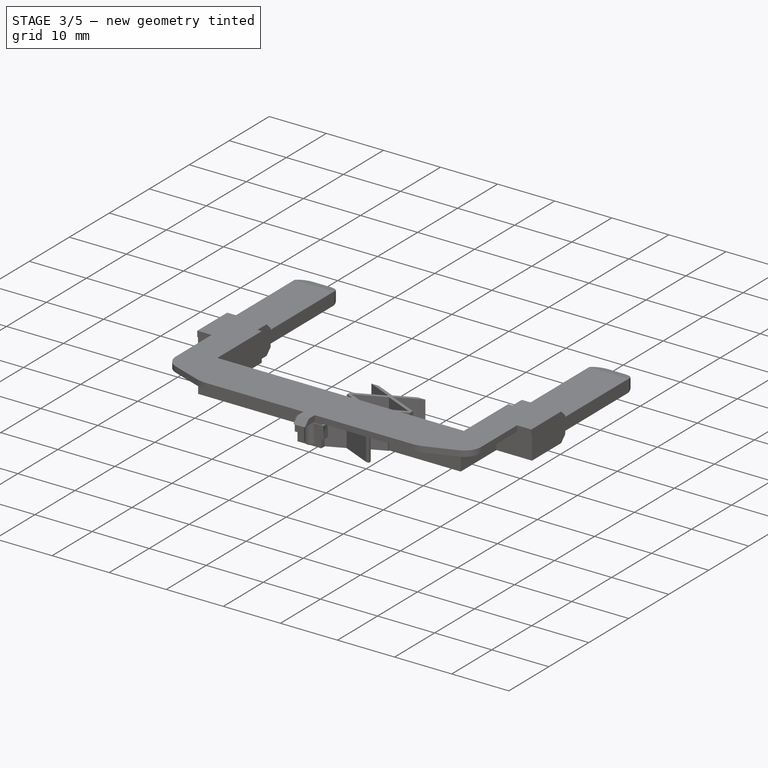
[diagram: stage 3 of 5 — iso view after this stage's code; geometry added in this stage tinted green]
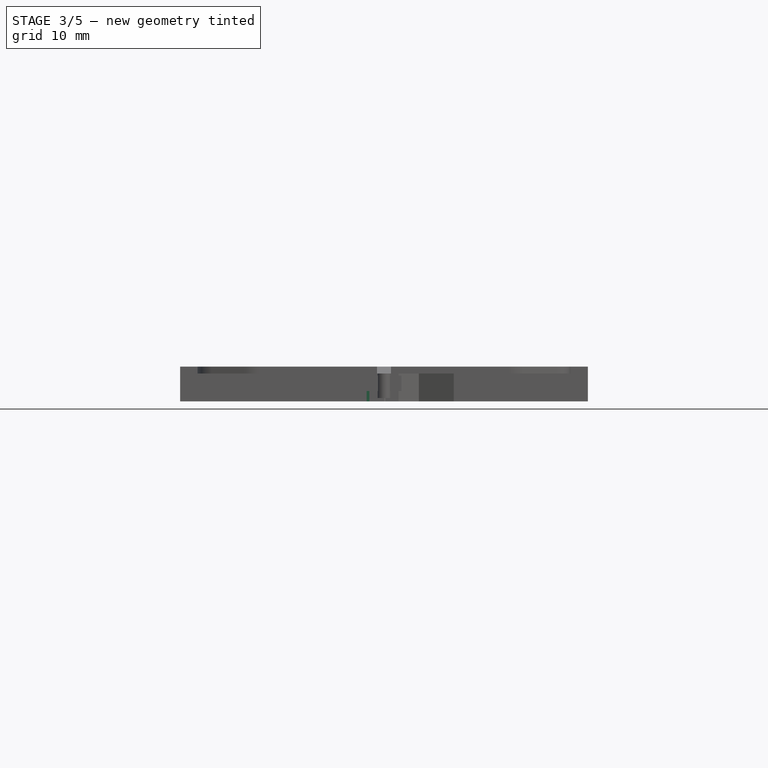
[diagram: stage 3 of 5 — front view after this stage's code; geometry added in this stage tinted green]
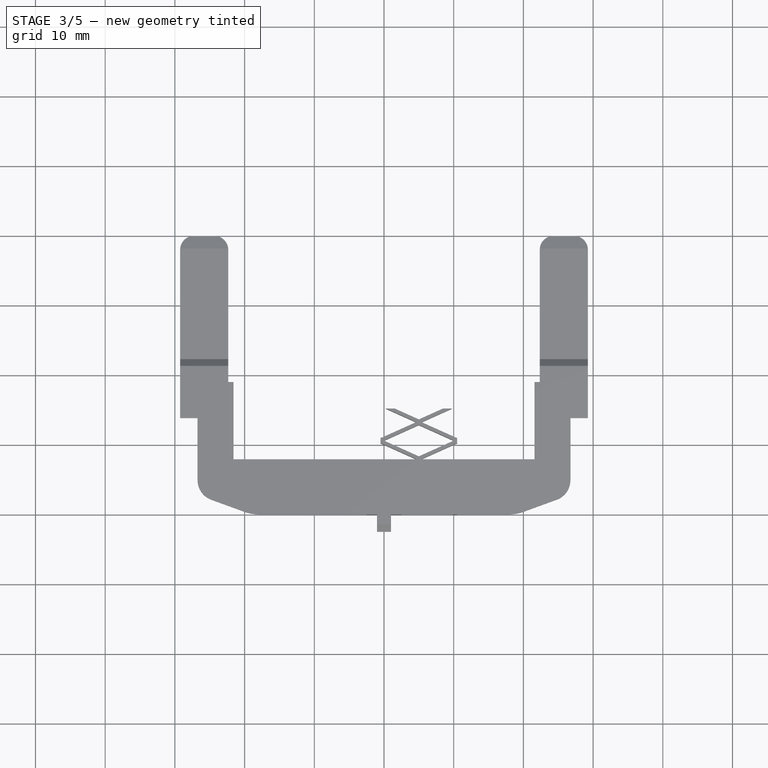
[diagram: stage 3 of 5 — top view after this stage's code; geometry added in this stage tinted green]
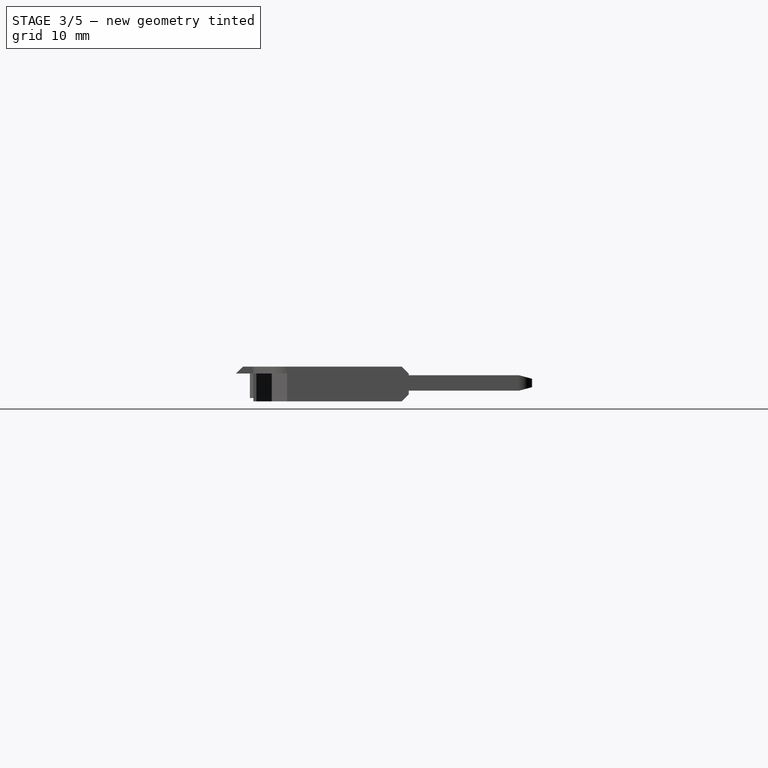
[diagram: stage 3 of 5 — right view after this stage's code; geometry added in this stage tinted green]
FEATURE [Sketcher::SketchObject] Sketch024
  FullyConstrained = true
  MapMode = 5
  Support = -> [XY_Plane005]
  sketch-geometry (4):
    g0: LineSegment StartX=-2.5 StartY=4.5 StartZ=0 EndX=2.5 EndY=4.5 EndZ=0
    g1: LineSegment StartX=2.5 StartY=4.5 StartZ=0 EndX=2.5 EndY=0 EndZ=0
    g2: LineSegment StartX=2.5 StartY=0 StartZ=0 EndX=-2.5 EndY=0 EndZ=0
    g3: LineSegment StartX=-2.5 StartY=0 StartZ=0 EndX=-2.5 EndY=4.5 EndZ=0
  constraints (12):
    c: Coincident(g0,g1)
    c: Coincident(g1,g2)
    c: Coincident(g2,g3)
    c: Coincident(g3,g0)
    c: Horizontal(g0)
    c: Horizontal(g2)
    c: Vertical(g1)
    c: Vertical(g3)
    c: DistanceY(g3,g3) = 4.5
    c: DistanceX(g0,g0) = 5
    c: DistanceY(g1,g-1) = 0
    c: DistanceX(g-1,g1) = 2.5
FEATURE [PartDesign::Pad] Pad010
  Direction = (0,0,1)
  Length = 2.7
  Length2 = 10
  Profile = -> Sketch024
  ReferenceAxis = -> Sketch024 [N_Axis]
  Type = 0
FEATURE [Sketcher::SketchObject] Sketch025
  FullyConstrained = true
  MapMode = 5
  Placement = pos=(0,0,0) rot=(0.57735,0.57735,0.57735;2.0944rad)
  Support = -> [YZ_Plane005]
  sketch-geometry (4):
    g0: LineSegment StartX=0 StartY=1.5 StartZ=0 EndX=2.7 EndY=1.5 EndZ=0
    g1: LineSegment StartX=2.7 StartY=1.5 StartZ=0 EndX=2.7 EndY=0 EndZ=0
    g2: LineSegment StartX=2.7 StartY=0 StartZ=0 EndX=0 EndY=0 EndZ=0
    g3: LineSegment StartX=0 StartY=0 StartZ=0 EndX=0 EndY=1.5 EndZ=0
  constraints (11):
    c: Coincident(g0,g1)
    c: Coincident(g1,g2)
    c: Coincident(g2,g3)
    c: Coincident(g3,g0)
    c: Horizontal(g0)
    c: Horizontal(g2)
    c: Vertical(g1)
    c: Vertical(g3)
    c: Coincident(g-1,g2)
    c: DistanceY(g1,g1) = 1.5
    c: DistanceX(g0,g0) = 2.7
FEATURE [PartDesign::Pocket] Pocket013
  BaseFeature = -> Pad010
  Direction = (-1,2e-16,-3e-16)
  Length = 5
  Length2 = 5
  Midplane = true
  Profile = -> Sketch025
  ReferenceAxis = -> Sketch025 [N_Axis]
  Type = 0
FEATURE [Sketcher::SketchObject] Sketch026
  ExternalGeometry = -> [Pocket013]
  FullyConstrained = true
  MapMode = 5
  Placement = pos=(0,0,0) rot=(0.57735,0.57735,0.57735;2.0944rad)
  Support = -> [YZ_Plane005]
  sketch-geometry (3):
    g0: LineSegment StartX=2.7 StartY=1.3e-15 StartZ=0 EndX=4.5 EndY=2.1 EndZ=0
    g1: LineSegment StartX=4.5 StartY=2.1 StartZ=0 EndX=4.5 EndY=1.3e-15 EndZ=0
    g2: LineSegment StartX=4.5 StartY=1.3e-15 StartZ=0 EndX=2.7 EndY=1.3e-15 EndZ=0
  constraints (8):
    c: Coincident(g-4,g0)
    c: Coincident(g0,g1)
    c: PointOnObject(g1,g-3)
    c: Vertical(g1)
    c: Coincident(g1,g2)
    c: Coincident(g2,g0)
    c: DistanceX(g-4,g1) = 0
    c: DistanceY(g-5,g0) = 0.6
FEATURE [PartDesign::Pocket] Pocket014
  BaseFeature = -> Pocket013
  Direction = (-1,2e-16,-3e-16)
  Length = 5
  Length2 = 5
  Midplane = true
  Profile = -> Sketch026
  ReferenceAxis = -> Sketch026 [N_Axis]
  Type = 0
FEATURE [Sketcher::SketchObject] Sketch028
  FullyConstrained = true
  MapMode = 5
  Placement = pos=(0,0,0) rot=(0.57735,0.57735,0.57735;2.0944rad)
  Support = -> [YZ_Plane006]
  sketch-geometry (4):
    g0: LineSegment StartX=0 StartY=1.5 StartZ=0 EndX=2.7 EndY=1.5 EndZ=0
    g1: LineSegment StartX=2.7 StartY=1.5 StartZ=0 EndX=2.7 EndY=0 EndZ=0
    g2: LineSegment StartX=2.7 StartY=0 StartZ=0 EndX=0 EndY=0 EndZ=0
    g3: LineSegment StartX=0 StartY=0 StartZ=0 EndX=0 EndY=1.5 EndZ=0
  constraints (11):
    c: Coincident(g0,g1)
    c: Coincident(g1,g2)
    c: Coincident(g2,g3)
    c: Coincident(g3,g0)
    c: Horizontal(g0)
    c: Horizontal(g2)
    c: Vertical(g1)
    c: Vertical(g3)
    c: Coincident(g-1,g2)
    c: DistanceY(g1,g1) = 1.5
    c: DistanceX(g0,g0) = 2.7
FEATURE [PartDesign::Pocket] Pocket015
  BaseFeature = -> Pad011
  Direction = (-1,2e-16,-3e-16)
  Length = 5
  Length2 = 5
  Midplane = true
  Profile = -> Sketch028
  ReferenceAxis = -> Sketch028 [N_Axis]
  Type = 0
FEATURE [Sketcher::SketchObject] Sketch029
  ExternalGeometry = -> [Pocket015]
  FullyConstrained = true
  MapMode = 5
  Placement = pos=(0,0,0) rot=(0.57735,0.57735,0.57735;2.0944rad)
  Support = -> [YZ_Plane006]
  sketch-geometry (3):
    g0: LineSegment StartX=2.7 StartY=1.3e-15 StartZ=0 EndX=4.5 EndY=2.1 EndZ=0
    g1: LineSegment StartX=4.5 StartY=2.1 StartZ=0 EndX=4.5 EndY=1.3e-15 EndZ=0
    g2: LineSegment StartX=4.5 StartY=1.3e-15 StartZ=0 EndX=2.7 EndY=1.3e-15 EndZ=0
  constraints (8):
    c: Coincident(g-4,g0)
    c: Coincident(g0,g1)
    c: PointOnObject(g1,g-3)
    c: Vertical(g1)
    c: Coincident(g1,g2)
    c: Coincident(g2,g0)
    c: DistanceX(g-4,g1) = 0
    c: DistanceY(g-5,g0) = 0.6
FEATURE [PartDesign::Pocket] Pocket016
  BaseFeature = -> Pocket015
  Direction = (-1,2e-16,-3e-16)
  Length = 5
  Length2 = 5
  Midplane = true
  Profile = -> Sketch029
  ReferenceAxis = -> Sketch029 [N_Axis]
  Type = 0
FEATURE [PartDesign::Body] Body003
  Group = -> [Sketch021,Pad009,Sketch022,Pocket011,Sketch023,Pocket012,Sketch031,Pad013]
  Origin = -> Origin004
  Placement = pos=(34.7,-9.1,1.3) rot=(0.57735,-0.57735,-0.57735;2.0944rad)
  Tip = -> Pad013
FEATURE [Sketcher::SketchObject] Sketch032
  ExternalGeometry = -> [Pocket014]
  FullyConstrained = true
  MapMode = 5
  Placement = pos=(0,0,2.7) rot=(0,0,1;0rad)
  Support = -> [Pocket014]
  sketch-geometry (4):
    g0: LineSegment StartX=-2.5 StartY=1.5 StartZ=0 EndX=2.5 EndY=1.5 EndZ=0
    g1: LineSegment StartX=2.5 StartY=1.5 StartZ=0 EndX=2.5 EndY=0 EndZ=0
    g2: LineSegment StartX=2.5 StartY=0 StartZ=0 EndX=-2.5 EndY=0 EndZ=0
    g3: LineSegment StartX=-2.5 StartY=0 StartZ=0 EndX=-2.5 EndY=1.5 EndZ=0
  constraints (10):
    c: Coincident(g0,g1)
    c: Coincident(g1,g2)
    c: Coincident(g2,g3)
    c: Coincident(g3,g0)
    c: Horizontal(g0)
    c: Vertical(g1)
    c: Vertical(g3)
    c: Coincident(g2,g-3)
    c: Coincident(g1,g-3)
    c: Distance(g1) = 1.5
FEATURE [PartDesign::Pad] Pad014
  BaseFeature = -> Pocket014
  Direction = (0,0,1)
  Length = 1
  Length2 = 10
  Profile = -> Sketch032
  ReferenceAxis = -> Sketch032 [N_Axis]
  Type = 0
FEATURE [PartDesign::Body] Body004
  Group = -> [Sketch024,Pad010,Sketch025,Pocket013,Sketch026,Pocket014,Sketch032,Pad014]
  Origin = -> Origin005
  Placement = pos=(-14.1,-34.8,1.3) rot=(0,0.707107,0.707107;3.14159rad)
  Tip = -> Pad014
FEATURE [Sketcher::SketchObject] Sketch033
  ExternalGeometry = -> [Pocket016]
  FullyConstrained = true
  MapMode = 5
  Placement = pos=(0,0,2.7) rot=(0,0,1;0rad)
  Support = -> [Pocket016]
  sketch-geometry (4):
    g0: LineSegment StartX=-2.5 StartY=0 StartZ=0 EndX=2.5 EndY=0 EndZ=0
    g1: LineSegment StartX=2.5 StartY=0 StartZ=0 EndX=2.5 EndY=1.5 EndZ=0
    g2: LineSegment StartX=2.5 StartY=1.5 StartZ=0 EndX=-2.5 EndY=1.5 EndZ=0
    g3: LineSegment StartX=-2.5 StartY=1.5 StartZ=0 EndX=-2.5 EndY=0 EndZ=0
  constraints (10):
    c: Coincident(g0,g1)
    c: Coincident(g1,g2)
    c: Coincident(g2,g3)
    c: Coincident(g3,g0)
    c: Horizontal(g2)
    c: Vertical(g1)
    c: Vertical(g3)
    c: Coincident(g0,g-3)
    c: Coincident(g0,g-3)
    c: Distance(g1) = 1.5
FEATURE [PartDesign::Pad] Pad015
  BaseFeature = -> Pocket016
  Direction = (0,0,1)
  Length = 1
  Length2 = 10
  Profile = -> Sketch033
  ReferenceAxis = -> Sketch033 [N_Axis]
  Type = 0
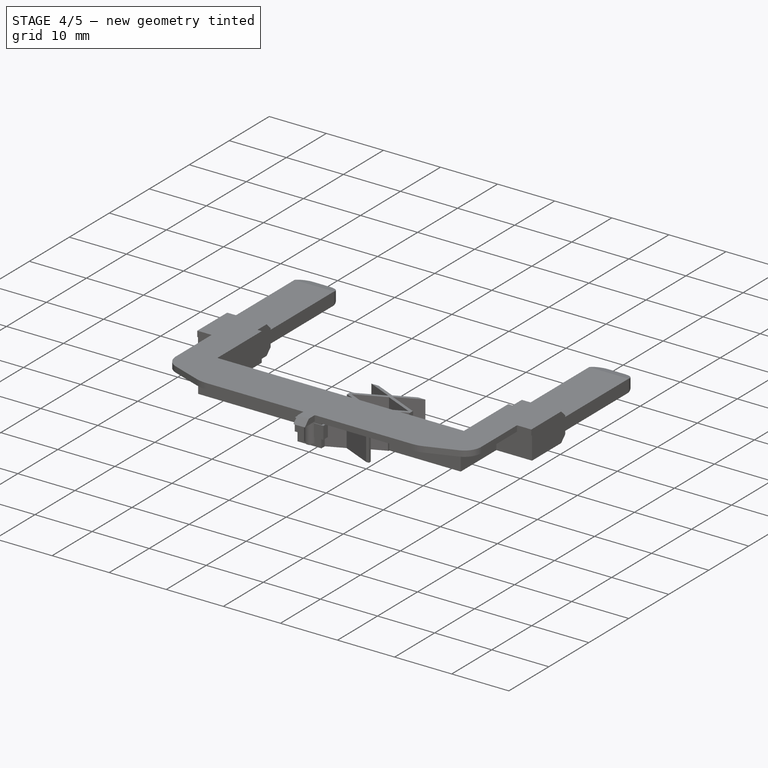
[diagram: stage 4 of 5 — iso view after this stage's code; geometry added in this stage tinted green]
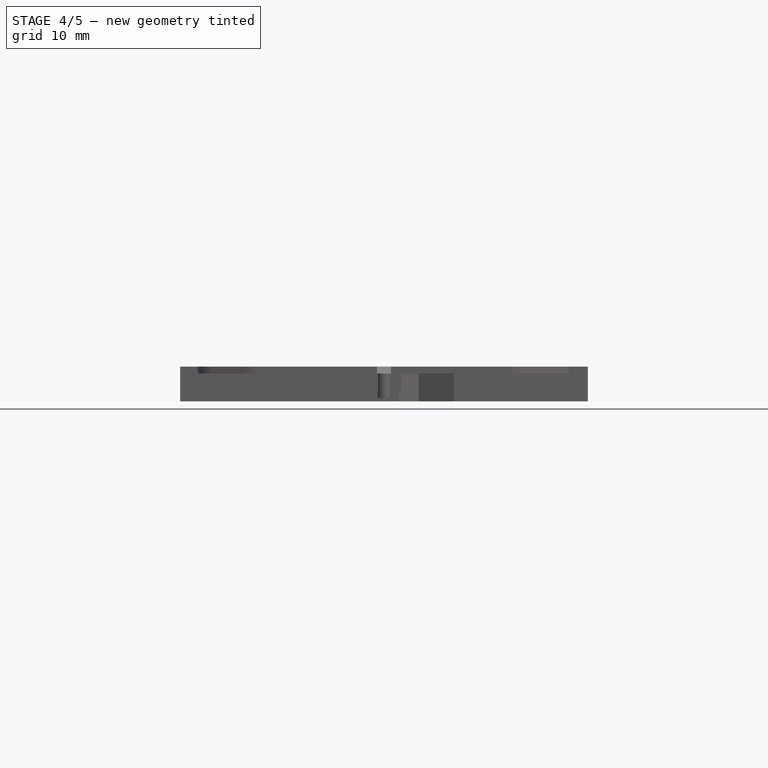
[diagram: stage 4 of 5 — front view after this stage's code; geometry added in this stage tinted green]
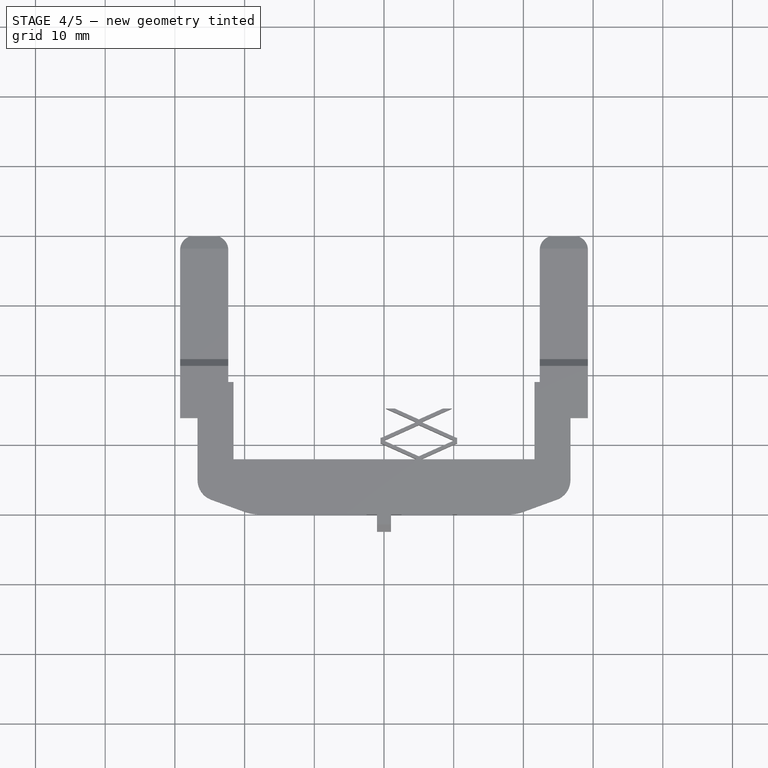
[diagram: stage 4 of 5 — top view after this stage's code; geometry added in this stage tinted green]
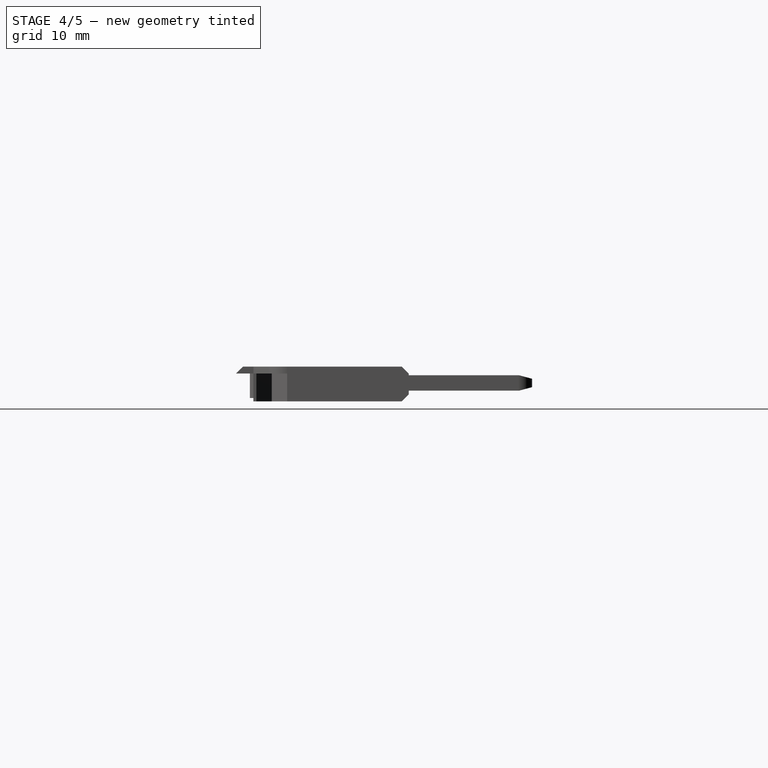
[diagram: stage 4 of 5 — right view after this stage's code; geometry added in this stage tinted green]
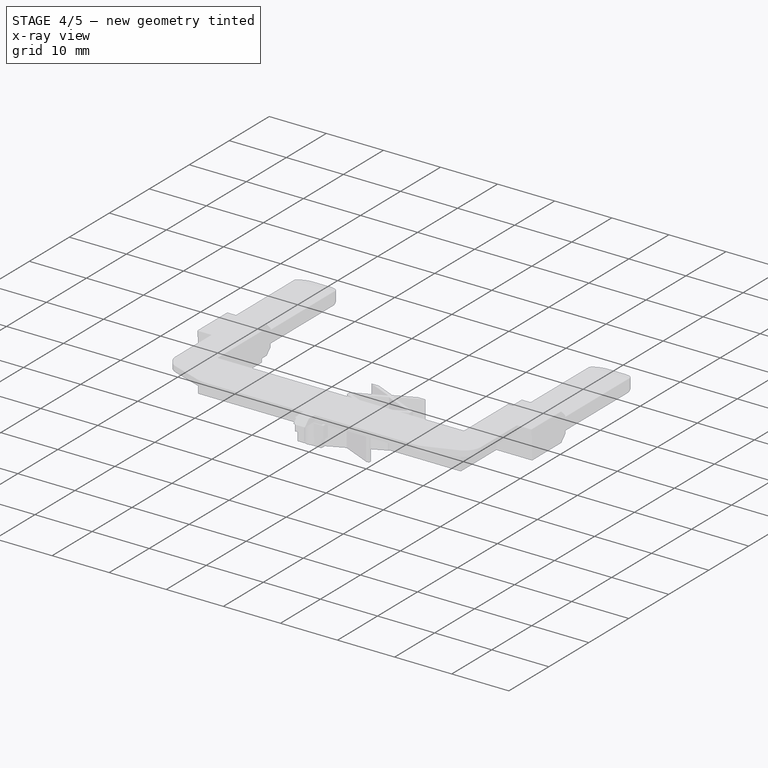
[diagram: stage 4 of 5 — x-ray composite at the iso view; earlier geometry ghosted, this stage's added geometry solid]
FEATURE [Sketcher::SketchObject] Sketch017
  FullyConstrained = true
  MapMode = 5
  Support = -> [XY_Plane003]
  sketch-geometry (4):
    g0: LineSegment StartX=-2.5 StartY=4.5 StartZ=0 EndX=2.5 EndY=4.5 EndZ=0
    g1: LineSegment StartX=2.5 StartY=4.5 StartZ=0 EndX=2.5 EndY=0 EndZ=0
    g2: LineSegment StartX=2.5 StartY=0 StartZ=0 EndX=-2.5 EndY=0 EndZ=0
    g3: LineSegment StartX=-2.5 StartY=0 StartZ=0 EndX=-2.5 EndY=4.5 EndZ=0
  constraints (12):
    c: Coincident(g0,g1)
    c: Coincident(g1,g2)
    c: Coincident(g2,g3)
    c: Coincident(g3,g0)
    c: Horizontal(g0)
    c: Horizontal(g2)
    c: Vertical(g1)
    c: Vertical(g3)
    c: DistanceY(g3,g3) = 4.5
    c: DistanceX(g0,g0) = 5
    c: DistanceY(g1,g-1) = 0
    c: DistanceX(g-1,g1) = 2.5
FEATURE [PartDesign::Pad] Pad007
  Direction = (0,0,1)
  Length = 2.7
  Length2 = 10
  Profile = -> Sketch017
  ReferenceAxis = -> Sketch017 [N_Axis]
  Type = 0
FEATURE [Sketcher::SketchObject] Sketch018
  FullyConstrained = true
  MapMode = 5
  Placement = pos=(0,0,0) rot=(0.57735,0.57735,0.57735;2.0944rad)
  Support = -> [YZ_Plane003]
  sketch-geometry (4):
    g0: LineSegment StartX=0 StartY=1.5 StartZ=0 EndX=2.7 EndY=1.5 EndZ=0
    g1: LineSegment StartX=2.7 StartY=1.5 StartZ=0 EndX=2.7 EndY=0 EndZ=0
    g2: LineSegment StartX=2.7 StartY=0 StartZ=0 EndX=0 EndY=0 EndZ=0
    g3: LineSegment StartX=0 StartY=0 StartZ=0 EndX=0 EndY=1.5 EndZ=0
  constraints (11):
    c: Coincident(g0,g1)
    c: Coincident(g1,g2)
    c: Coincident(g2,g3)
    c: Coincident(g3,g0)
    c: Horizontal(g0)
    c: Horizontal(g2)
    c: Vertical(g1)
    c: Vertical(g3)
    c: Coincident(g-1,g2)
    c: DistanceY(g1,g1) = 1.5
    c: DistanceX(g0,g0) = 2.7
FEATURE [PartDesign::Pocket] Pocket009
  BaseFeature = -> Pad007
  Direction = (-1,2e-16,-3e-16)
  Length = 5
  Length2 = 5
  Midplane = true
  Profile = -> Sketch018
  ReferenceAxis = -> Sketch018 [N_Axis]
  Type = 0
FEATURE [Sketcher::SketchObject] Sketch019
  ExternalGeometry = -> [Pocket009]
  FullyConstrained = true
  MapMode = 5
  Placement = pos=(0,0,0) rot=(0.57735,0.57735,0.57735;2.0944rad)
  Support = -> [YZ_Plane003]
  sketch-geometry (3):
    g0: LineSegment StartX=2.7 StartY=1.3e-15 StartZ=0 EndX=4.5 EndY=2.1 EndZ=0
    g1: LineSegment StartX=4.5 StartY=2.1 StartZ=0 EndX=4.5 EndY=1.3e-15 EndZ=0
    g2: LineSegment StartX=4.5 StartY=1.3e-15 StartZ=0 EndX=2.7 EndY=1.3e-15 EndZ=0
  constraints (8):
    c: Coincident(g-4,g0)
    c: Coincident(g0,g1)
    c: PointOnObject(g1,g-3)
    c: Vertical(g1)
    c: Coincident(g1,g2)
    c: Coincident(g2,g0)
    c: DistanceX(g-4,g1) = 0
    c: DistanceY(g-5,g0) = 0.6
FEATURE [PartDesign::Pocket] Pocket010
  BaseFeature = -> Pocket009
  Direction = (-1,2e-16,-3e-16)
  Length = 5
  Length2 = 5
  Midplane = true
  Profile = -> Sketch019
  ReferenceAxis = -> Sketch019 [N_Axis]
  Type = 0
FEATURE [Sketcher::SketchObject] Sketch021
  FullyConstrained = true
  MapMode = 5
  Support = -> [XY_Plane004]
  sketch-geometry (4):
    g0: LineSegment StartX=-2.5 StartY=4.5 StartZ=0 EndX=2.5 EndY=4.5 EndZ=0
    g1: LineSegment StartX=2.5 StartY=4.5 StartZ=0 EndX=2.5 EndY=0 EndZ=0
    g2: LineSegment StartX=2.5 StartY=0 StartZ=0 EndX=-2.5 EndY=0 EndZ=0
    g3: LineSegment StartX=-2.5 StartY=0 StartZ=0 EndX=-2.5 EndY=4.5 EndZ=0
  constraints (12):
    c: Coincident(g0,g1)
    c: Coincident(g1,g2)
    c: Coincident(g2,g3)
    c: Coincident(g3,g0)
    c: Horizontal(g0)
    c: Horizontal(g2)
    c: Vertical(g1)
    c: Vertical(g3)
    c: DistanceY(g3,g3) = 4.5
    c: DistanceX(g0,g0) = 5
    c: DistanceY(g1,g-1) = 0
    c: DistanceX(g-1,g1) = 2.5
FEATURE [PartDesign::Pad] Pad009
  Direction = (0,0,1)
  Length = 2.7
  Length2 = 10
  Profile = -> Sketch021
  ReferenceAxis = -> Sketch021 [N_Axis]
  Type = 0
FEATURE [Sketcher::SketchObject] Sketch022
  FullyConstrained = true
  MapMode = 5
  Placement = pos=(0,0,0) rot=(0.57735,0.57735,0.57735;2.0944rad)
  Support = -> [YZ_Plane004]
  sketch-geometry (4):
    g0: LineSegment StartX=0 StartY=1.5 StartZ=0 EndX=2.7 EndY=1.5 EndZ=0
    g1: LineSegment StartX=2.7 StartY=1.5 StartZ=0 EndX=2.7 EndY=0 EndZ=0
    g2: LineSegment StartX=2.7 StartY=0 StartZ=0 EndX=0 EndY=0 EndZ=0
    g3: LineSegment StartX=0 StartY=0 StartZ=0 EndX=0 EndY=1.5 EndZ=0
  constraints (11):
    c: Coincident(g0,g1)
    c: Coincident(g1,g2)
    c: Coincident(g2,g3)
    c: Coincident(g3,g0)
    c: Horizontal(g0)
    c: Horizontal(g2)
    c: Vertical(g1)
    c: Vertical(g3)
    c: Coincident(g-1,g2)
    c: DistanceY(g1,g1) = 1.5
    c: DistanceX(g0,g0) = 2.7
FEATURE [PartDesign::Pocket] Pocket011
  BaseFeature = -> Pad009
  Direction = (-1,2e-16,-3e-16)
  Length = 5
  Length2 = 5
  Midplane = true
  Profile = -> Sketch022
  ReferenceAxis = -> Sketch022 [N_Axis]
  Type = 0
FEATURE [Sketcher::SketchObject] Sketch023
  ExternalGeometry = -> [Pocket011]
  FullyConstrained = true
  MapMode = 5
  Placement = pos=(0,0,0) rot=(0.57735,0.57735,0.57735;2.0944rad)
  Support = -> [YZ_Plane004]
  sketch-geometry (3):
    g0: LineSegment StartX=2.7 StartY=1.3e-15 StartZ=0 EndX=4.5 EndY=2.1 EndZ=0
    g1: LineSegment StartX=4.5 StartY=2.1 StartZ=0 EndX=4.5 EndY=1.3e-15 EndZ=0
    g2: LineSegment StartX=4.5 StartY=1.3e-15 StartZ=0 EndX=2.7 EndY=1.3e-15 EndZ=0
  constraints (8):
    c: Coincident(g-4,g0)
    c: Coincident(g0,g1)
    c: PointOnObject(g1,g-3)
    c: Vertical(g1)
    c: Coincident(g1,g2)
    c: Coincident(g2,g0)
    c: DistanceX(g-4,g1) = 0
    c: DistanceY(g-5,g0) = 0.6
FEATURE [PartDesign::Pocket] Pocket012
  BaseFeature = -> Pocket011
  Direction = (-1,2e-16,-3e-16)
  Length = 5
  Length2 = 5
  Midplane = true
  Profile = -> Sketch023
  ReferenceAxis = -> Sketch023 [N_Axis]
  Type = 0
FEATURE [Sketcher::SketchObject] Sketch030
  ExternalGeometry = -> [Pocket010]
  FullyConstrained = true
  MapMode = 5
  Placement = pos=(0,0,2.7) rot=(0,0,1;0rad)
  Support = -> [Pocket010]
  sketch-geometry (4):
    g0: LineSegment StartX=-2.5 StartY=2 StartZ=0 EndX=2.5 EndY=2 EndZ=0
    g1: LineSegment StartX=2.5 StartY=2 StartZ=0 EndX=2.5 EndY=0 EndZ=0
    g2: LineSegment StartX=2.5 StartY=0 StartZ=0 EndX=-2.5 EndY=0 EndZ=0
    g3: LineSegment StartX=-2.5 StartY=0 StartZ=0 EndX=-2.5 EndY=2 EndZ=0
  constraints (12):
    c: Coincident(g0,g1)
    c: Coincident(g1,g2)
    c: Coincident(g2,g3)
    c: Coincident(g3,g0)
    c: Horizontal(g0)
    c: Horizontal(g2)
    c: Vertical(g1)
    c: Vertical(g3)
    c: PointOnObject(g1,g-1)
    c: DistanceX(g-3,g0) = 0
    c: DistanceX(g-4,g0) = 0
    c: DistanceY(g3,g3) = 2
FEATURE [PartDesign::Pad] Pad012
  BaseFeature = -> Pocket010
  Direction = (0,0,1)
  Length = 1
  Length2 = 10
  Profile = -> Sketch030
  ReferenceAxis = -> Sketch030 [N_Axis]
  Type = 0
FEATURE [PartDesign::Body] Body002
  Group = -> [Sketch017,Pad007,Sketch018,Pocket009,Sketch019,Pocket010,Sketch030,Pad012]
  Origin = -> Origin003
  Placement = pos=(-34.8,-9.1,1.3) rot=(0.57735,0.57735,0.57735;2.0944rad)
  Tip = -> Pad012
FEATURE [Sketcher::SketchObject] Sketch031
  ExternalGeometry = -> [Pocket012]
  FullyConstrained = true
  MapMode = 5
  Placement = pos=(0,0,2.7) rot=(0,0,1;0rad)
  Support = -> [Pocket012]
  sketch-geometry (4):
    g0: LineSegment StartX=-2.5 StartY=0 StartZ=0 EndX=2.5 EndY=0 EndZ=0
    g1: LineSegment StartX=2.5 StartY=0 StartZ=0 EndX=2.5 EndY=2 EndZ=0
    g2: LineSegment StartX=2.5 StartY=2 StartZ=0 EndX=-2.5 EndY=2 EndZ=0
    g3: LineSegment StartX=-2.5 StartY=2 StartZ=0 EndX=-2.5 EndY=0 EndZ=0
  constraints (11):
    c: Coincident(g0,g1)
    c: Coincident(g1,g2)
    c: Coincident(g2,g3)
    c: Coincident(g3,g0)
    c: Horizontal(g0)
    c: Horizontal(g2)
    c: Vertical(g1)
    c: Vertical(g3)
    c: Coincident(g0,g-4)
    c: PointOnObject(g1,g-3)
    c: DistanceY(g3,g3) = 2
FEATURE [PartDesign::Pad] Pad013
  BaseFeature = -> Pocket012
  Direction = (0,0,1)
  Length = 1
  Length2 = 10
  Profile = -> Sketch031
  ReferenceAxis = -> Sketch031 [N_Axis]
  Type = 0
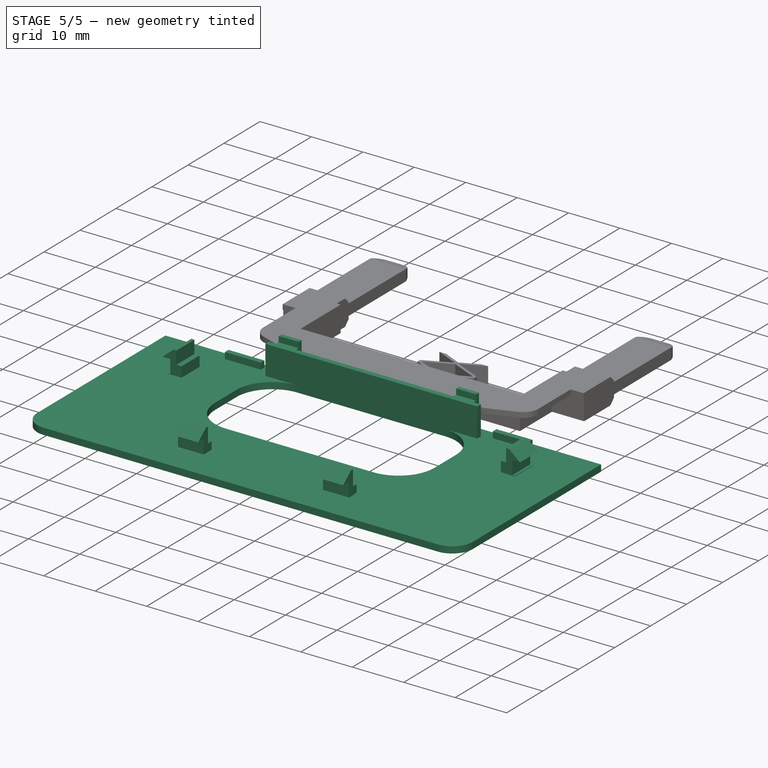
[diagram: stage 5 of 5 — iso view after this stage's code; geometry added in this stage tinted green]
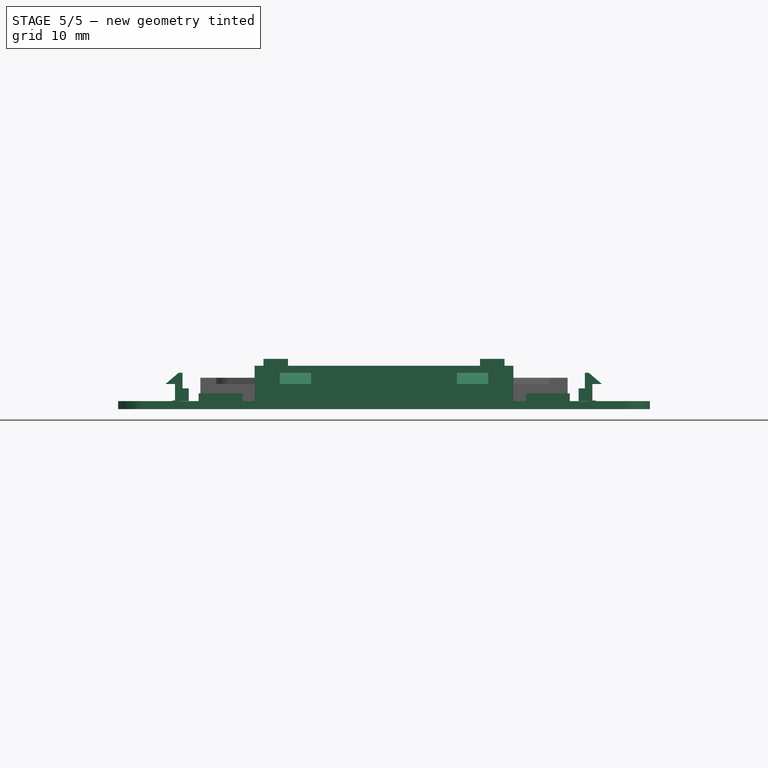
[diagram: stage 5 of 5 — front view after this stage's code; geometry added in this stage tinted green]
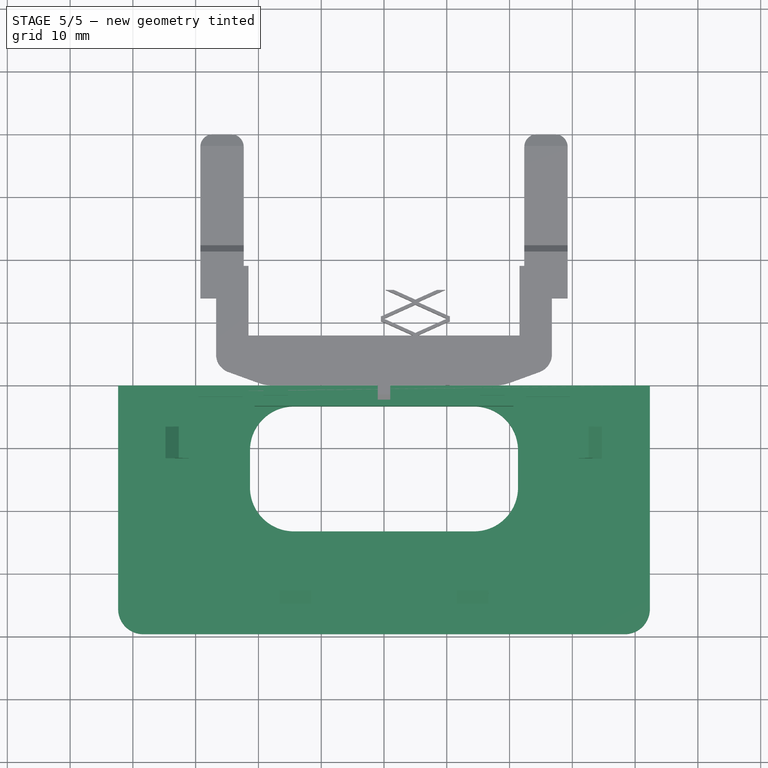
[diagram: stage 5 of 5 — top view after this stage's code; geometry added in this stage tinted green]
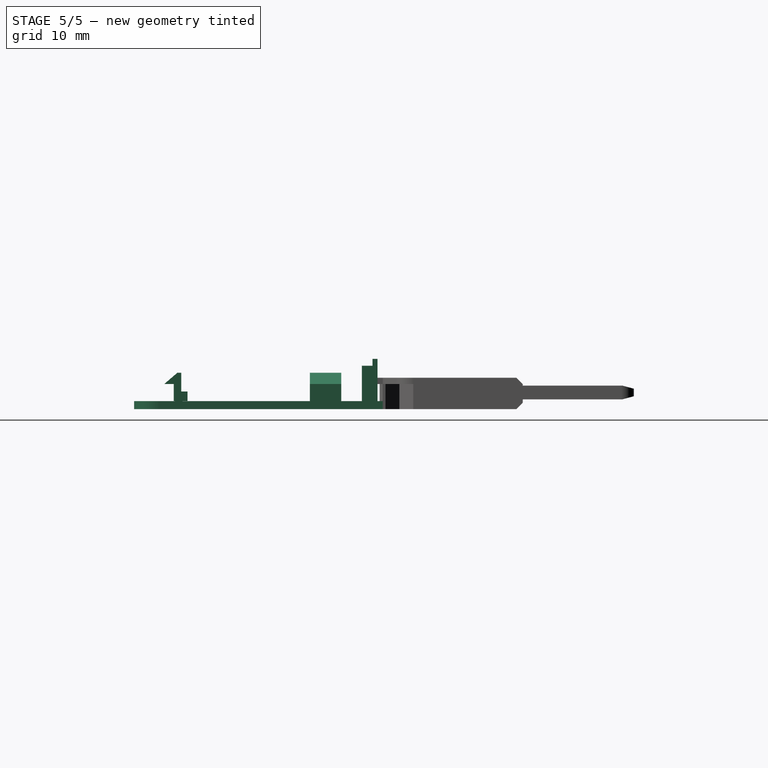
[diagram: stage 5 of 5 — right view after this stage's code; geometry added in this stage tinted green]
FEATURE [Sketcher::SketchObject] Sketch011  label="base"
  FullyConstrained = true
  MapMode = 5
  Support = -> [XY_Plane002]
  sketch-geometry (6):
    g0: LineSegment StartX=-42.35 StartY=0 StartZ=0 EndX=42.35 EndY=0 EndZ=0
    g1: LineSegment StartX=42.35 StartY=0 StartZ=0 EndX=42.35 EndY=-35.6 EndZ=0
    g2: LineSegment StartX=38.35 StartY=-39.6 StartZ=0 EndX=-38.35 EndY=-39.6 EndZ=0
    g3: LineSegment StartX=-42.35 StartY=-35.6 StartZ=0 EndX=-42.35 EndY=0 EndZ=0
    g4: ArcOfCircle CenterX=-38.35 CenterY=-35.6 CenterZ=0 NormalX=0 NormalY=0 NormalZ=1 AngleXU=0 Radius=4 StartAngle=3.14159 EndAngle=4.71239
    g5: ArcOfCircle CenterX=38.35 CenterY=-35.6 CenterZ=0 NormalX=0 NormalY=0 NormalZ=1 AngleXU=0 Radius=4 StartAngle=4.71239 EndAngle=6.28319
  constraints (16):
    c: Coincident(g0,g1)
    c: Coincident(g3,g0)
    c: Horizontal(g0)
    c: Horizontal(g2)
    c: Vertical(g1)
    c: Vertical(g3)
    c: DistanceX(g0,g0) = 84.7
    c: Tangent(g3,g4) = 1.5708
    c: Tangent(g2,g4) = 1.5708
    c: Tangent(g2,g5) = 1.5708
    c: Tangent(g1,g5) = 1.5708
    c: Radius(g4) = 4
    c: Radius(g5) = 4
    c: DistanceY(g-1,g0) = 0
    c: DistanceY(g2,g0) = 39.6
    c: DistanceX(g-1,g0) = 42.35
FEATURE [PartDesign::Pad] Pad003  label="base001"
  Direction = (0,0,1)
  Length = 1.27
  Length2 = 10
  Profile = -> Sketch011
  ReferenceAxis = -> Sketch011 [N_Axis]
  Type = 0
FEATURE [Sketcher::SketchObject] Sketch012
  ExternalGeometry = -> [Pad003]
  FullyConstrained = true
  MapMode = 5
  Support = -> [XY_Plane002]
  sketch-geometry (8):
    g0: LineSegment StartX=-14.35 StartY=-3.33 StartZ=0 EndX=14.35 EndY=-3.33 EndZ=0
    g1: LineSegment StartX=21.35 StartY=-10.33 StartZ=0 EndX=21.35 EndY=-16.23 EndZ=0
    g2: LineSegment StartX=14.35 StartY=-23.23 StartZ=0 EndX=-14.35 EndY=-23.23 EndZ=0
    g3: LineSegment StartX=-21.35 StartY=-16.23 StartZ=0 EndX=-21.35 EndY=-10.33 EndZ=0
    g4: ArcOfCircle CenterX=-14.35 CenterY=-10.33 CenterZ=0 NormalX=0 NormalY=0 NormalZ=1 AngleXU=0 Radius=7 StartAngle=1.5708 EndAngle=3.14159
    g5: ArcOfCircle CenterX=-14.35 CenterY=-16.23 CenterZ=0 NormalX=0 NormalY=0 NormalZ=1 AngleXU=0 Radius=7 StartAngle=3.14159 EndAngle=4.71239
    g6: ArcOfCircle CenterX=14.35 CenterY=-16.23 CenterZ=0 NormalX=0 NormalY=0 NormalZ=1 AngleXU=0 Radius=7 StartAngle=4.71239 EndAngle=6.28319
    g7: ArcOfCircle CenterX=14.35 CenterY=-10.33 CenterZ=0 NormalX=0 NormalY=0 NormalZ=1 AngleXU=0 Radius=7 StartAngle=-3.6e-15 EndAngle=1.5708
  constraints (20):
    c: Horizontal(g0)
    c: Horizontal(g2)
    c: Vertical(g1)
    c: Vertical(g3)
    c: Tangent(g0,g4) = 1.5708
    c: Tangent(g3,g4) = 1.5708
    c: Tangent(g3,g5) = 1.5708
    c: Tangent(g2,g5) = 1.5708
    c: Tangent(g2,g6) = 1.5708
    c: Tangent(g1,g6) = 1.5708
    c: Tangent(g1,g7) = 1.5708
    c: Tangent(g0,g7) = 1.5708
    c: DistanceY(g2,g0) = 19.9
    c: DistanceX(g3,g1) = 42.7
    c: Radius(g4) = 7
    c: Equal(g4,g7)
    c: Equal(g7,g6)
    c: Equal(g6,g5)
    c: DistanceX(g3,g-1) = 21.35
    c: DistanceY(g0,g-1) = 3.33
FEATURE [PartDesign::Pocket] Pocket007  label="hole"
  BaseFeature = -> Pad003
  Direction = (0,0,-1)
  Length = 5
  Length2 = 5
  Profile = -> Sketch012
  ReferenceAxis = -> Sketch012 [N_Axis]
  Reversed = true
  Type = 1
  UseCustomVector = true
FEATURE [Sketcher::SketchObject] Sketch013  label="top_support"
  ExternalGeometry = -> [Pocket007]
  FullyConstrained = true
  MapMode = 5
  Support = -> [XY_Plane002]
  sketch-geometry (4):
    g0: LineSegment StartX=-20.6 StartY=-2.33 StartZ=0 EndX=20.6 EndY=-2.33 EndZ=0
    g1: LineSegment StartX=20.6 StartY=-2.33 StartZ=0 EndX=20.6 EndY=-3.33 EndZ=0
    g2: LineSegment StartX=20.6 StartY=-3.33 StartZ=0 EndX=-20.6 EndY=-3.33 EndZ=0
    g3: LineSegment StartX=-20.6 StartY=-3.33 StartZ=0 EndX=-20.6 EndY=-2.33 EndZ=0
  constraints (12):
    c: Coincident(g0,g1)
    c: Coincident(g1,g2)
    c: Coincident(g2,g3)
    c: Coincident(g3,g0)
    c: Horizontal(g0)
    c: Horizontal(g2)
    c: Vertical(g1)
    c: Vertical(g3)
    c: DistanceY(g1,g1) = 1
    c: DistanceX(g0,g0) = 41.2
    c: DistanceX(g-1,g1) = 20.6
    c: DistanceY(g-4,g1) = 0
FEATURE [PartDesign::Pad] Pad004
  BaseFeature = -> Pocket007
  Direction = (0,0,1)
  Length = 6.9
  Length2 = 10
  Profile = -> Sketch013
  ReferenceAxis = -> Sketch013 [N_Axis]
  Type = 0
FEATURE [Sketcher::SketchObject] Sketch014
  ExternalGeometry = -> [Pad004]
  FullyConstrained = true
  MapMode = 5
  Support = -> [XY_Plane002]
  sketch-geometry (8):
    g0: LineSegment StartX=-19.2 StartY=-0.83 StartZ=0 EndX=-15.3 EndY=-0.83 EndZ=0
    g1: LineSegment StartX=-15.3 StartY=-0.83 StartZ=0 EndX=-15.3 EndY=-2.33 EndZ=0
    g2: LineSegment StartX=-15.3 StartY=-2.33 StartZ=0 EndX=-19.2 EndY=-2.33 EndZ=0
    g3: LineSegment StartX=-19.2 StartY=-2.33 StartZ=0 EndX=-19.2 EndY=-0.83 EndZ=0
    g4: LineSegment StartX=15.3 StartY=-0.83 StartZ=0 EndX=19.2 EndY=-0.83 EndZ=0
    g5: LineSegment StartX=19.2 StartY=-0.83 StartZ=0 EndX=19.2 EndY=-2.33 EndZ=0
    g6: LineSegment StartX=19.2 StartY=-2.33 StartZ=0 EndX=15.3 EndY=-2.33 EndZ=0
    g7: LineSegment StartX=15.3 StartY=-2.33 StartZ=0 EndX=15.3 EndY=-0.83 EndZ=0
  constraints (24):
    c: Coincident(g0,g1)
    c: Coincident(g1,g2)
    c: Coincident(g2,g3)
    c: Coincident(g3,g0)
    c: Horizontal(g0)
    c: Horizontal(g2)
    c: Vertical(g1)
    c: Vertical(g3)
    c: Coincident(g4,g5)
    c: Coincident(g5,g6)
    c: Coincident(g6,g7)
    c: Coincident(g7,g4)
    c: Horizontal(g4)
    c: Horizontal(g6)
    c: Vertical(g5)
    c: Vertical(g7)
    c: DistanceY(g-3,g2) = 0
    c: DistanceY(g-3,g5) = 0
    c: DistanceX(g1,g6) = 30.6
    c: DistanceX(g-1,g6) = 15.3
    c: DistanceX(g0,g0) = 3.9
    c: DistanceX(g4,g4) = 3.9
    c: DistanceY(g5,g5) = 1.5
    c: DistanceY(g1,g1) = 1.5
FEATURE [PartDesign::Pad] Pad005
  BaseFeature = -> Pad004
  Direction = (0,0,1)
  Length = 8
  Length2 = 10
  Profile = -> Sketch014
  ReferenceAxis = -> Sketch014 [N_Axis]
  Type = 0
FEATURE [Sketcher::SketchObject] Sketch015
  ExternalGeometry = -> [Pad005]
  FullyConstrained = true
  MapMode = 5
  Placement = pos=(-19.2,0,0) rot=(0.57735,-0.57735,-0.57735;2.0944rad)
  Support = -> [Pad005]
  sketch-geometry (4):
    g0: LineSegment StartX=1.63 StartY=8 StartZ=0 EndX=2.33 EndY=8 EndZ=0
    g1: LineSegment StartX=2.33 StartY=8 StartZ=0 EndX=2.33 EndY=6.9 EndZ=0
    g2: LineSegment StartX=2.33 StartY=6.9 StartZ=0 EndX=1.63 EndY=6.9 EndZ=0
    g3: LineSegment StartX=1.63 StartY=6.9 StartZ=0 EndX=1.63 EndY=8 EndZ=0
  constraints (11):
    c: Coincident(g0,g1)
    c: Coincident(g1,g2)
    c: Coincident(g2,g3)
    c: Coincident(g3,g0)
    c: Horizontal(g0)
    c: Horizontal(g2)
    c: Vertical(g1)
    c: Vertical(g3)
    c: Coincident(g1,g-3)
    c: DistanceY(g-3,g0) = 0
    c: DistanceX(g0,g0) = 0.7
FEATURE [PartDesign::Pocket] Pocket008
  BaseFeature = -> Pad005
  Direction = (1,0,0)
  Length = 5
  Length2 = 5
  Profile = -> Sketch015
  ReferenceAxis = -> Sketch015 [N_Axis]
  Type = 1
FEATURE [Sketcher::SketchObject] Sketch016
  ExternalGeometry = -> [Pocket008]
  FullyConstrained = true
  MapMode = 5
  Placement = pos=(0,0,0) rot=(1,0,0;3.14159rad)
  Support = -> [Pocket008]
  sketch-geometry (8):
    g0: LineSegment StartX=-29.53 StartY=1.83 StartZ=0 EndX=-22.53 EndY=1.83 EndZ=0
    g1: LineSegment StartX=-22.53 StartY=1.83 StartZ=0 EndX=-22.53 EndY=0.83 EndZ=0
    g2: LineSegment StartX=-22.53 StartY=0.83 StartZ=0 EndX=-29.53 EndY=0.83 EndZ=0
    g3: LineSegment StartX=-29.53 StartY=0.83 StartZ=0 EndX=-29.53 EndY=1.83 EndZ=0
    g4: LineSegment StartX=22.59 StartY=1.83 StartZ=0 EndX=29.59 EndY=1.83 EndZ=0
    g5: LineSegment StartX=29.59 StartY=1.83 StartZ=0 EndX=29.59 EndY=0.83 EndZ=0
    g6: LineSegment StartX=29.59 StartY=0.83 StartZ=0 EndX=22.59 EndY=0.83 EndZ=0
    g7: LineSegment StartX=22.59 StartY=0.83 StartZ=0 EndX=22.59 EndY=1.83 EndZ=0
  constraints (24):
    c: Coincident(g0,g1)
    c: Coincident(g1,g2)
    c: Coincident(g2,g3)
    c: Coincident(g3,g0)
    c: Horizontal(g0)
    c: Horizontal(g2)
    c: Vertical(g1)
    c: Vertical(g3)
    c: Coincident(g4,g5)
    c: Coincident(g5,g6)
    c: Coincident(g6,g7)
    c: Coincident(g7,g4)
    c: Horizontal(g4)
    c: Horizontal(g6)
    c: Vertical(g5)
    c: Vertical(g7)
    c: DistanceY(g1,g1) = 1
    c: DistanceY(g7,g7) = 1
    c: DistanceX(g4,g4) = 7
    c: DistanceX(g0,g0) = 7
    c: DistanceX(g0,g4) = 59.12
    c: DistanceX(g-1,g4) = 29.59
    c: DistanceY(g1,g-5) = 0
    c: DistanceY(g6,g-4) = 0
FEATURE [PartDesign::Pad] Pad006  label="top_supports"
  BaseFeature = -> Pocket008
  Direction = (0,0,-1)
  Length = 2.5
  Length2 = 10
  Profile = -> Sketch016
  ReferenceAxis = -> Sketch016 [N_Axis]
  Reversed = true
  Type = 0
FEATURE [Sketcher::SketchObject] Sketch020
  ExternalGeometry = -> [Pad006]
  FullyConstrained = true
  MapMode = 5
  Placement = pos=(0,0,1.27) rot=(0,0,1;0rad)
  Support = -> [Pad006]
  sketch-geometry (16):
    g0: LineSegment StartX=-16.65 StartY=-31.9 StartZ=0 EndX=-11.65 EndY=-31.9 EndZ=0
    g1: LineSegment StartX=-11.65 StartY=-31.9 StartZ=0 EndX=-11.65 EndY=-33.1 EndZ=0
    g2: LineSegment StartX=-11.65 StartY=-33.1 StartZ=0 EndX=-16.65 EndY=-33.1 EndZ=0
    g3: LineSegment StartX=-16.65 StartY=-33.1 StartZ=0 EndX=-16.65 EndY=-31.9 EndZ=0
    g4: LineSegment StartX=11.65 StartY=-33.1 StartZ=0 EndX=16.65 EndY=-33.1 EndZ=0
    g5: LineSegment StartX=16.65 StartY=-33.1 StartZ=0 EndX=16.65 EndY=-31.9 EndZ=0
    g6: LineSegment StartX=16.65 StartY=-31.9 StartZ=0 EndX=11.65 EndY=-31.9 EndZ=0
    g7: LineSegment StartX=11.65 StartY=-31.9 StartZ=0 EndX=11.65 EndY=-33.1 EndZ=0
    g8: LineSegment StartX=32.55 StartY=-6.6 StartZ=0 EndX=33.75 EndY=-6.6 EndZ=0
    g9: LineSegment StartX=33.75 StartY=-6.6 StartZ=0 EndX=33.75 EndY=-11.6 EndZ=0
    g10: LineSegment StartX=33.75 StartY=-11.6 StartZ=0 EndX=32.55 EndY=-11.6 EndZ=0
    g11: LineSegment StartX=32.55 StartY=-11.6 StartZ=0 EndX=32.55 EndY=-6.6 EndZ=0
    g12: LineSegment StartX=-33.75 StartY=-6.6 StartZ=0 EndX=-32.55 EndY=-6.6 EndZ=0
    g13: LineSegment StartX=-32.55 StartY=-6.6 StartZ=0 EndX=-32.55 EndY=-11.6 EndZ=0
    g14: LineSegment StartX=-32.55 StartY=-11.6 StartZ=0 EndX=-33.75 EndY=-11.6 EndZ=0
    g15: LineSegment StartX=-33.75 StartY=-11.6 StartZ=0 EndX=-33.75 EndY=-6.6 EndZ=0
  constraints (48):
    c: Coincident(g0,g1)
    c: Coincident(g1,g2)
    c: Coincident(g2,g3)
    c: Coincident(g3,g0)
    c: Horizontal(g0)
    c: Horizontal(g2)
    c: Vertical(g1)
    c: Vertical(g3)
    c: Coincident(g4,g5)
    c: Coincident(g5,g6)
    c: Coincident(g6,g7)
    c: Coincident(g7,g4)
    c: Horizontal(g4)
    c: Horizontal(g6)
    c: Vertical(g5)
    c: Vertical(g7)
    c: Coincident(g8,g9)
    c: Coincident(g9,g10)
    c: Coincident(g10,g11)
    c: Coincident(g11,g8)
    c: Horizontal(g8)
    c: Horizontal(g10)
    c: Vertical(g9)
    c: Vertical(g11)
    c: Coincident(g12,g13)
    c: Coincident(g13,g14)
    c: Coincident(g14,g15)
    c: Coincident(g15,g12)
    c: Horizontal(g12)
    c: Horizontal(g14)
    c: Vertical(g13)
    c: Vertical(g15)
    c: DistanceX(g14,g14) = 1.2
    c: DistanceX(g10,g10) = 1.2
    c: DistanceY(g13,g13) = 5
    c: DistanceY(g9,g9) = 5
    c: DistanceY(g5,g5) = 1.2
    c: DistanceY(g1,g1) = 1.2
    c: DistanceX(g0,g0) = 5
    c: DistanceX(g6,g6) = 5
    c: DistanceX(g1,g4) = 23.3
    c: DistanceX(g-1,g4) = 11.65
    c: DistanceX(g13,g10) = 65.1
    c: DistanceX(g-1,g10) = 32.55
    c: DistanceY(g-3,g4) = 6.5
    c: DistanceY(g-3,g2) = 6.5
    c: DistanceY(g-3,g13) = 28
    c: DistanceY(g-3,g10) = 28
FEATURE [PartDesign::Pad] Pad008  label="supports"
  BaseFeature = -> Pad006
  Direction = (0,0,1)
  Length = 0.1
  Length2 = 10
  Profile = -> Sketch020
  ReferenceAxis = -> Sketch020 [N_Axis]
  Type = 0
FEATURE [PartDesign::Body] Body005
  Group = -> [Sketch027,Pad011,Sketch028,Pocket015,Sketch029,Pocket016,Sketch033,Pad015]
  Origin = -> Origin006
  Placement = pos=(14.1,-34.8,1.3) rot=(0,0.707107,0.707107;3.14159rad)
  Tip = -> Pad015
FEATURE [PartDesign::Boolean] Boolean
  BaseFeature = -> Pad008
  Group = -> [Body002,Body003,Body004,Body005]
  Type = 0
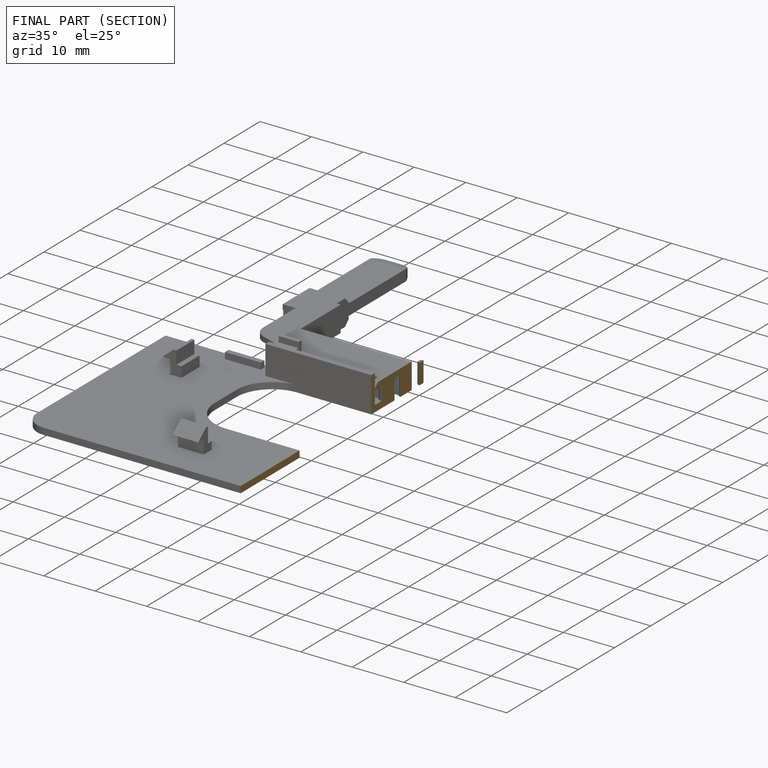
[diagram: finished part — half-section view (interior)]
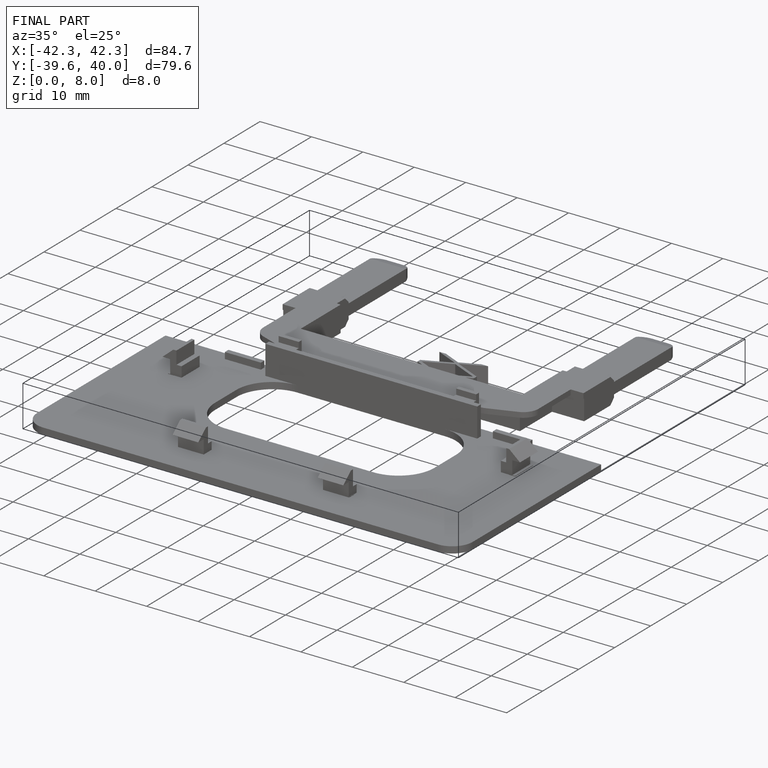
[diagram: finished part — iso view with bounding-box wireframe]
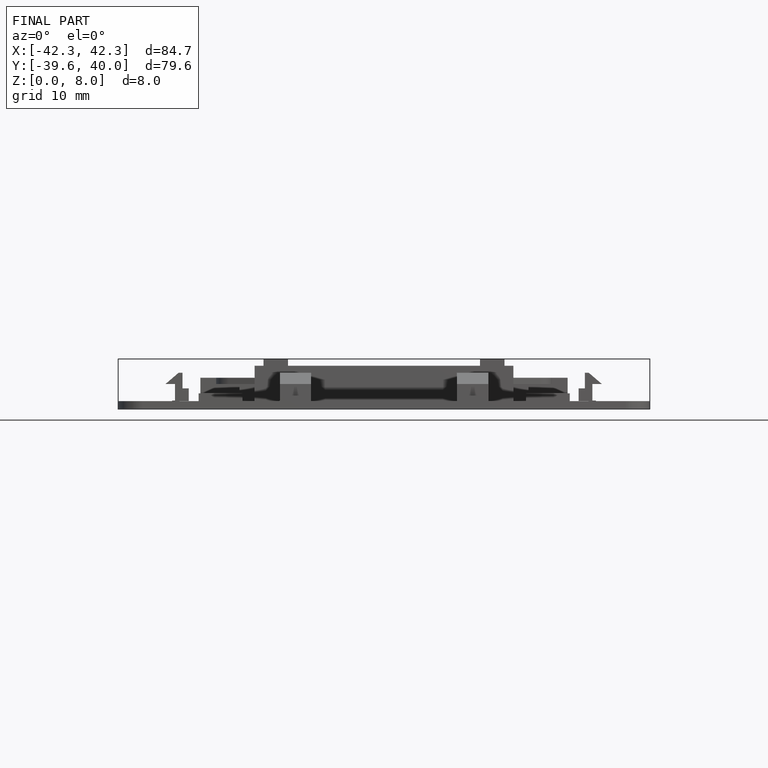
[diagram: finished part — front view with bounding-box wireframe]
